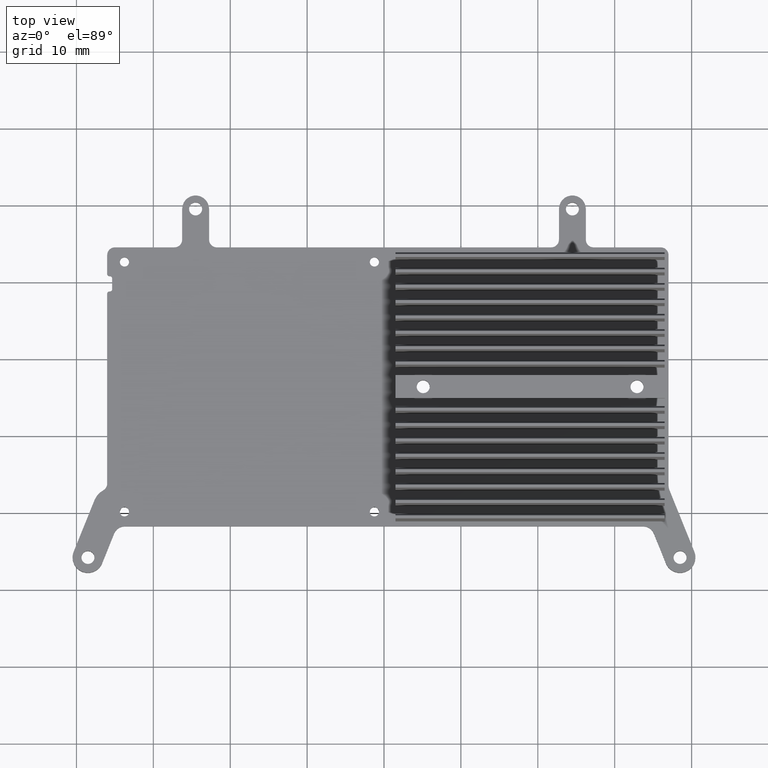
[diagram: clean part render]
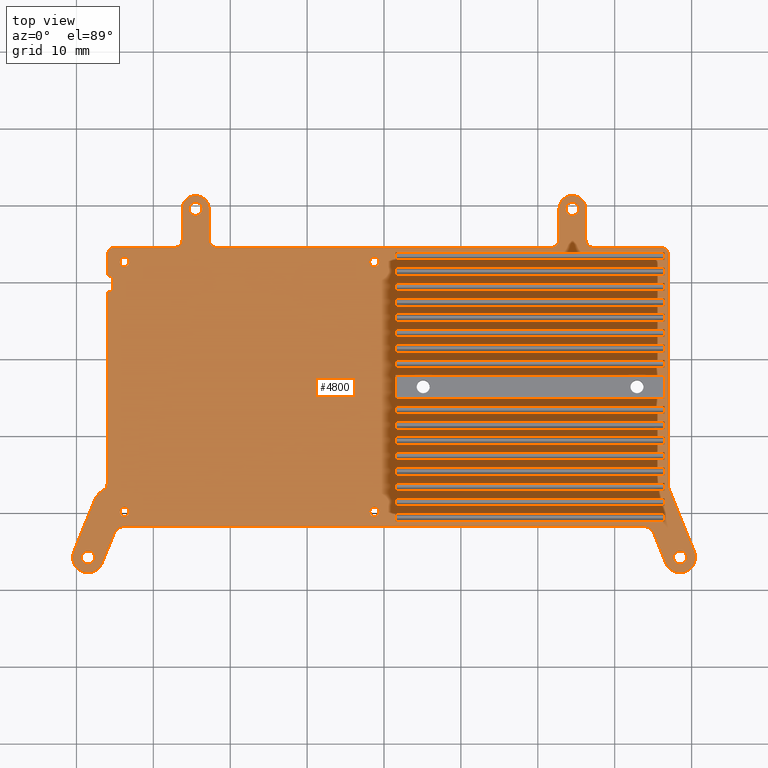
[diagram: same view with one face highlighted and labeled with its STEP entity id]
A machine part, top view. The second image highlights one B-rep face of the part: STEP entity #4800.
In plain terms, the highlighted planar face has unit normal (-0, 0, 1).
Its self-contained STEP definition (entity closure, byte-faithful):
#5 = ORIENTED_EDGE ( 'NONE', *, *, #4268, .T. ) ;
#6 = DIRECTION ( 'NONE',  ( 1.000000000000000000, 0.0000000000000000000, 0.0000000000000000000 ) ) ;
#14 = CARTESIAN_POINT ( 'NONE',  ( 36.49940000000000100, -0.1122800975400076200, -6.099999999999999600 ) ) ;
#19 = AXIS2_PLACEMENT_3D ( 'NONE', #4706, #1341, #3414 ) ;
#20 = DIRECTION ( 'NONE',  ( -1.000000000000000000, 0.0000000000000000000, 0.0000000000000000000 ) ) ;
#25 = EDGE_CURVE ( 'NONE', #5014, #2307, #4585, .T. ) ;
#26 = CARTESIAN_POINT ( 'NONE',  ( 51.58500000000000100, -6.112280097539998500, -6.099999999999999600 ) ) ;
#28 = ORIENTED_EDGE ( 'NONE', *, *, #4254, .T. ) ;
#46 = EDGE_CURVE ( 'NONE', #2111, #1652, #1079, .T. ) ;
#63 = DIRECTION ( 'NONE',  ( 1.000000000000000000, 0.0000000000000000000, 0.0000000000000000000 ) ) ;
#68 = VERTEX_POINT ( 'NONE', #4671 ) ;
#72 = CARTESIAN_POINT ( 'NONE',  ( -35.99940000000000100, 13.53570848732000100, -6.099999999999999600 ) ) ;
#85 = EDGE_CURVE ( 'NONE', #407, #3063, #267, .T. ) ;
#96 = ORIENTED_EDGE ( 'NONE', *, *, #5006, .T. ) ;
#98 = EDGE_CURVE ( 'NONE', #879, #3138, #335, .T. ) ;
#101 = DIRECTION ( 'NONE',  ( 1.000000000000000000, 0.0000000000000000000, 0.0000000000000000000 ) ) ;
#105 = EDGE_CURVE ( 'NONE', #953, #5404, #804, .T. ) ;
#110 = CARTESIAN_POINT ( 'NONE',  ( -27.24929999790000000, 15.53570848732000100, -6.099999999999999600 ) ) ;
#126 = CARTESIAN_POINT ( 'NONE',  ( 36.49940000000000100, -9.112280097539994000, -6.099999999999999600 ) ) ;
#129 = EDGE_CURVE ( 'NONE', #1042, #1892, #2532, .T. ) ;
#134 = CARTESIAN_POINT ( 'NONE',  ( 36.49940000000000100, 0.8877199024600008800, -6.099999999999999600 ) ) ;
#139 = DIRECTION ( 'NONE',  ( -1.000000000000000000, 0.0000000000000000000, 0.0000000000000000000 ) ) ;
#145 = EDGE_LOOP ( 'NONE', ( #2026, #1548, #3938, #3032 ) ) ;
#146 = ORIENTED_EDGE ( 'NONE', *, *, #851, .F. ) ;
#148 = EDGE_CURVE ( 'NONE', #4727, #3548, #4719, .T. ) ;
#149 = ORIENTED_EDGE ( 'NONE', *, *, #46, .T. ) ;
#158 = ORIENTED_EDGE ( 'NONE', *, *, #2972, .T. ) ;
#164 = EDGE_CURVE ( 'NONE', #2771, #1436, #4513, .T. ) ;
#169 = ORIENTED_EDGE ( 'NONE', *, *, #5033, .F. ) ;
#178 = FACE_BOUND ( 'NONE', #3728, .T. ) ;
#179 = CARTESIAN_POINT ( 'NONE',  ( 36.49940000000000100, 5.887719902459991800, -6.099999999999999600 ) ) ;
#181 = DIRECTION ( 'NONE',  ( -0.0000000000000000000, -1.000000000000000000, 0.0000000000000000000 ) ) ;
#183 = CIRCLE ( 'NONE', #829, 0.3000000000000016500 ) ;
#186 = CIRCLE ( 'NONE', #965, 1.000000000000000900 ) ;
#199 = EDGE_CURVE ( 'NONE', #5082, #486, #2477, .T. ) ;
#202 = VECTOR ( 'NONE', #3110, 1000.000000000000000 ) ;
#204 = CARTESIAN_POINT ( 'NONE',  ( -34.99940000000000100, 13.53570848732000100, -6.099999999999999600 ) ) ;
#207 = CARTESIAN_POINT ( 'NONE',  ( 36.49940000000000100, 29.85825307265000100, -6.099999999999999600 ) ) ;
#209 = EDGE_CURVE ( 'NONE', #2814, #2687, #5456, .T. ) ;
#212 = ORIENTED_EDGE ( 'NONE', *, *, #774, .F. ) ;
#227 = EDGE_CURVE ( 'NONE', #2365, #1393, #4250, .T. ) ;
#231 = AXIS2_PLACEMENT_3D ( 'NONE', #818, #2085, #1682 ) ;
#233 = CARTESIAN_POINT ( 'NONE',  ( 1.500599999999998200, -17.11228009753999000, -6.099999999999999600 ) ) ;
#240 = CARTESIAN_POINT ( 'NONE',  ( 51.58500000000000100, -19.11228009754000100, -6.099999999999999600 ) ) ;
#242 = CARTESIAN_POINT ( 'NONE',  ( 35.99940000000000100, 13.53570848732000100, -6.099999999999999600 ) ) ;
#245 = CARTESIAN_POINT ( 'NONE',  ( 51.58500000000000100, 8.887719902460000700, -6.099999999999999600 ) ) ;
#247 = CARTESIAN_POINT ( 'NONE',  ( 51.58500000000000100, 12.88771990246000100, -6.099999999999999600 ) ) ;
#255 = VECTOR ( 'NONE', #3635, 1000.000000000000000 ) ;
#259 = EDGE_CURVE ( 'NONE', #1101, #2677, #542, .T. ) ;
#262 = CARTESIAN_POINT ( 'NONE',  ( -33.14939999999999300, -19.86228009754000100, -6.099999999999999600 ) ) ;
#265 = CARTESIAN_POINT ( 'NONE',  ( -36.52040683251854600, -17.06572210977933000, -6.099999999999999600 ) ) ;
#267 = LINE ( 'NONE', #1711, #3195 ) ;
#271 = CIRCLE ( 'NONE', #4537, 0.5999999999999999800 ) ;
#273 = EDGE_LOOP ( 'NONE', ( #4320, #3394 ) ) ;
#277 = EDGE_CURVE ( 'NONE', #1153, #2442, #5181, .T. ) ;
#278 = VERTEX_POINT ( 'NONE', #1453 ) ;
#279 = EDGE_LOOP ( 'NONE', ( #2724, #5301 ) ) ;
#282 = DIRECTION ( 'NONE',  ( -0.0000000000000000000, 1.000000000000000000, 0.0000000000000000000 ) ) ;
#286 = VERTEX_POINT ( 'NONE', #2595 ) ;
#287 = EDGE_CURVE ( 'NONE', #1032, #4276, #2268, .T. ) ;
#293 = DIRECTION ( 'NONE',  ( -1.000000000000000000, 0.0000000000000000000, 0.0000000000000000000 ) ) ;
#307 = CARTESIAN_POINT ( 'NONE',  ( 36.49940000000000100, -1.112280097540000500, -6.099999999999999600 ) ) ;
#321 = CIRCLE ( 'NONE', #1435, 1.000000000000000900 ) ;
#335 = LINE ( 'NONE', #456, #5323 ) ;
#346 = CARTESIAN_POINT ( 'NONE',  ( 36.99940000000000100, 29.85825307265000100, -6.099999999999999600 ) ) ;
#349 = ORIENTED_EDGE ( 'NONE', *, *, #590, .T. ) ;
#353 = EDGE_CURVE ( 'NONE', #499, #4315, #1538, .T. ) ;
#362 = ORIENTED_EDGE ( 'NONE', *, *, #3028, .T. ) ;
#364 = VECTOR ( 'NONE', #447, 1000.000000000000000 ) ;
#368 = CARTESIAN_POINT ( 'NONE',  ( 36.64512865006570800, -26.53677403974174400, -6.099999999999999600 ) ) ;
#371 = EDGE_CURVE ( 'NONE', #2229, #3337, #5104, .T. ) ;
#372 = ORIENTED_EDGE ( 'NONE', *, *, #4968, .T. ) ;
#376 = ORIENTED_EDGE ( 'NONE', *, *, #4046, .T. ) ;
#383 = DIRECTION ( 'NONE',  ( 1.000000000000000000, 0.0000000000000000000, 0.0000000000000000000 ) ) ;
#390 = DIRECTION ( 'NONE',  ( 1.000000000000000000, 0.0000000000000000000, 0.0000000000000000000 ) ) ;
#391 = EDGE_CURVE ( 'NONE', #3739, #5004, #4845, .T. ) ;
#401 = VECTOR ( 'NONE', #4306, 1000.000000000000000 ) ;
#404 = LINE ( 'NONE', #1071, #5109 ) ;
#407 = VERTEX_POINT ( 'NONE', #4927 ) ;
#409 = CIRCLE ( 'NONE', #4640, 1.000000000000000900 ) ;
#416 = CARTESIAN_POINT ( 'NONE',  ( 1.500599999999998200, -5.112280097539998500, -6.099999999999999600 ) ) ;
#418 = CARTESIAN_POINT ( 'NONE',  ( 51.58500000000000100, -8.112280097539999300, -6.099999999999999600 ) ) ;
#425 = CARTESIAN_POINT ( 'NONE',  ( 36.49940000000000100, 9.887719902459993500, -6.099999999999999600 ) ) ;
#430 = CARTESIAN_POINT ( 'NONE',  ( 26.24929999790000000, 29.85825307265000100, -6.099999999999999600 ) ) ;
#439 = ORIENTED_EDGE ( 'NONE', *, *, #25, .F. ) ;
#441 = CARTESIAN_POINT ( 'NONE',  ( 36.49940000000000100, -21.76026868240000000, -6.099999999999999600 ) ) ;
#447 = DIRECTION ( 'NONE',  ( -0.0000000000000000000, -1.000000000000000000, 0.0000000000000000000 ) ) ;
#449 = EDGE_CURVE ( 'NONE', #499, #5004, #798, .T. ) ;
#450 = CARTESIAN_POINT ( 'NONE',  ( 1.500599999999999500, -1.112280097539999600, -6.099999999999999600 ) ) ;
#452 = LINE ( 'NONE', #4543, #4904 ) ;
#454 = CARTESIAN_POINT ( 'NONE',  ( 1.500599999999998200, -19.11228009753999400, -6.099999999999999600 ) ) ;
#456 = CARTESIAN_POINT ( 'NONE',  ( 22.74939999789999900, 29.85825307265000100, -6.099999999999999600 ) ) ;
#463 = FACE_BOUND ( 'NONE', #3964, .T. ) ;
#468 = EDGE_CURVE ( 'NONE', #4722, #775, #4184, .T. ) ;
#469 = ORIENTED_EDGE ( 'NONE', *, *, #780, .T. ) ;
#477 = CARTESIAN_POINT ( 'NONE',  ( -1.249400000000000100, -19.86228009754000100, -6.099999999999999600 ) ) ;
#486 = VERTEX_POINT ( 'NONE', #265 ) ;
#488 = CIRCLE ( 'NONE', #3220, 1.500000000000001300 ) ;
#495 = DIRECTION ( 'NONE',  ( 1.000000000000000000, 0.0000000000000000000, 0.0000000000000000000 ) ) ;
#499 = VERTEX_POINT ( 'NONE', #3668 ) ;
#503 = EDGE_CURVE ( 'NONE', #3343, #1076, #4981, .T. ) ;
#505 = DIRECTION ( 'NONE',  ( -0.0000000000000000000, 1.000000000000000000, 0.0000000000000000000 ) ) ;
#511 = DIRECTION ( 'NONE',  ( 1.000000000000000000, 0.0000000000000000000, 0.0000000000000000000 ) ) ;
#519 = CARTESIAN_POINT ( 'NONE',  ( -35.99940000000000100, 0.0000000000000000000, -6.099999999999999600 ) ) ;
#542 = LINE ( 'NONE', #1052, #2664 ) ;
#549 = DIRECTION ( 'NONE',  ( 1.000000000000000000, -0.0000000000000000000, 0.0000000000000000000 ) ) ;
#552 = CARTESIAN_POINT ( 'NONE',  ( -35.64940000000000000, 9.097719902459999700, -6.099999999999999600 ) ) ;
#553 = CARTESIAN_POINT ( 'NONE',  ( 1.500599999999999900, 14.53570848732000100, -6.099999999999999600 ) ) ;
#556 = EDGE_CURVE ( 'NONE', #2217, #2218, #4055, .T. ) ;
#557 = LINE ( 'NONE', #1234, #2219 ) ;
#560 = CARTESIAN_POINT ( 'NONE',  ( 1.500599999999997700, 29.85825307265000100, -6.099999999999999600 ) ) ;
#563 = LINE ( 'NONE', #4220, #3823 ) ;
#564 = CARTESIAN_POINT ( 'NONE',  ( 37.64945000000000900, -25.78757958323000200, -6.100000000000001400 ) ) ;
#569 = CIRCLE ( 'NONE', #231, 0.3000000000000016500 ) ;
#579 = CARTESIAN_POINT ( 'NONE',  ( -22.74939999789999600, 19.53570848732000100, -6.099999999999999600 ) ) ;
#586 = DIRECTION ( 'NONE',  ( 0.0000000000000000000, 0.0000000000000000000, -1.000000000000000000 ) ) ;
#590 = EDGE_CURVE ( 'NONE', #1231, #4961, #5035, .T. ) ;
#592 = VECTOR ( 'NONE', #2881, 1000.000000000000000 ) ;
#601 = EDGE_CURVE ( 'NONE', #2707, #3326, #3650, .T. ) ;
#607 = ORIENTED_EDGE ( 'NONE', *, *, #353, .T. ) ;
#606 = CARTESIAN_POINT ( 'NONE',  ( -26.24929999789999600, 29.85825307265000100, -6.099999999999999600 ) ) ;
#614 = ORIENTED_EDGE ( 'NONE', *, *, #3542, .T. ) ;
#631 = ORIENTED_EDGE ( 'NONE', *, *, #1606, .T. ) ;
#633 = EDGE_CURVE ( 'NONE', #1190, #1756, #5309, .T. ) ;
#635 = DIRECTION ( 'NONE',  ( -0.0000000000000000000, -0.0000000000000000000, -1.000000000000000000 ) ) ;
#658 = CARTESIAN_POINT ( 'NONE',  ( 51.58500000000000100, -11.11228009754000300, -6.099999999999999600 ) ) ;
#659 = LINE ( 'NONE', #240, #1465 ) ;
#663 = LINE ( 'NONE', #4408, #2328 ) ;
#669 = VERTEX_POINT ( 'NONE', #1617 ) ;
#672 = VERTEX_POINT ( 'NONE', #1650 ) ;
#675 = DIRECTION ( 'NONE',  ( -1.000000000000000000, -0.0000000000000000000, -0.0000000000000000000 ) ) ;
#679 = CARTESIAN_POINT ( 'NONE',  ( -1.849400000000000200, -19.86228009754000100, -6.099999999999999600 ) ) ;
#687 = EDGE_LOOP ( 'NONE', ( #5482, #2801, #957, #4880 ) ) ;
#722 = DIRECTION ( 'NONE',  ( 1.000000000000000000, 0.0000000000000000000, 0.0000000000000000000 ) ) ;
#723 = DIRECTION ( 'NONE',  ( -0.0000000000000000000, -0.0000000000000000000, -1.000000000000000000 ) ) ;
#725 = CARTESIAN_POINT ( 'NONE',  ( -22.74939999789999900, 15.53570848732000100, -6.099999999999999600 ) ) ;
#727 = LINE ( 'NONE', #519, #5243 ) ;
#728 = CARTESIAN_POINT ( 'NONE',  ( 36.49940000000000100, 29.85825307265000100, -6.099999999999999600 ) ) ;
#734 = FACE_BOUND ( 'NONE', #894, .T. ) ;
#737 = VECTOR ( 'NONE', #1781, 1000.000000000000000 ) ;
#751 = AXIS2_PLACEMENT_3D ( 'NONE', #4236, #2088, #4201 ) ;
#759 = EDGE_CURVE ( 'NONE', #4213, #2479, #863, .T. ) ;
#767 = CARTESIAN_POINT ( 'NONE',  ( 36.49940000000000100, -14.11228009753999600, -6.099999999999999600 ) ) ;
#774 = EDGE_CURVE ( 'NONE', #1032, #486, #2128, .T. ) ;
#775 = VERTEX_POINT ( 'NONE', #5095 ) ;
#778 = CARTESIAN_POINT ( 'NONE',  ( -33.70353244259000300, -23.26026868240000300, -6.099999999999999600 ) ) ;
#780 = EDGE_CURVE ( 'NONE', #3543, #4219, #2526, .T. ) ;
#781 = CARTESIAN_POINT ( 'NONE',  ( 1.500599999999997700, 29.85825307265000100, -6.099999999999999600 ) ) ;
#785 = DIRECTION ( 'NONE',  ( -0.0000000000000000000, -1.000000000000000000, 0.0000000000000000000 ) ) ;
#792 = VECTOR ( 'NONE', #4128, 1000.000000000000000 ) ;
#793 = CARTESIAN_POINT ( 'NONE',  ( 51.58500000000000100, 4.887719902459998000, -6.099999999999999600 ) ) ;
#798 = LINE ( 'NONE', #1129, #1860 ) ;
#804 = LINE ( 'NONE', #4608, #2601 ) ;
#818 = CARTESIAN_POINT ( 'NONE',  ( -35.69939999999999700, 11.09771990246000000, -6.099999999999999600 ) ) ;
#822 = EDGE_LOOP ( 'NONE', ( #2482, #5385, #4763, #1055 ) ) ;
#829 = AXIS2_PLACEMENT_3D ( 'NONE', #4298, #935, #1777 ) ;
#834 = LINE ( 'NONE', #1889, #1833 ) ;
#847 = DIRECTION ( 'NONE',  ( -0.0000000000000000000, 1.000000000000000000, 0.0000000000000000000 ) ) ;
#851 = EDGE_CURVE ( 'NONE', #4447, #4146, #183, .T. ) ;
#855 = VECTOR ( 'NONE', #785, 1000.000000000000000 ) ;
#863 = CIRCLE ( 'NONE', #3318, 0.6000000000000033100 ) ;
#879 = VERTEX_POINT ( 'NONE', #1406 ) ;
#886 = EDGE_CURVE ( 'NONE', #5461, #4687, #3986, .T. ) ;
#889 = ORIENTED_EDGE ( 'NONE', *, *, #911, .T. ) ;
#894 = EDGE_LOOP ( 'NONE', ( #4848, #5425, #169, #349 ) ) ;
#895 = AXIS2_PLACEMENT_3D ( 'NONE', #3392, #4626, #5085 ) ;
#896 = VECTOR ( 'NONE', #2829, 1000.000000000000000 ) ;
#902 = DIRECTION ( 'NONE',  ( -0.0000000000000000000, -0.0000000000000000000, -1.000000000000000000 ) ) ;
#905 = CARTESIAN_POINT ( 'NONE',  ( 51.58500000000000100, 10.79771990246000300, -6.099999999999999600 ) ) ;
#909 = ORIENTED_EDGE ( 'NONE', *, *, #85, .F. ) ;
#911 = EDGE_CURVE ( 'NONE', #68, #2642, #2056, .T. ) ;
#920 = FACE_BOUND ( 'NONE', #145, .T. ) ;
#923 = EDGE_CURVE ( 'NONE', #1652, #2111, #3387, .T. ) ;
#935 = DIRECTION ( 'NONE',  ( 0.0000000000000000000, 0.0000000000000000000, -1.000000000000000000 ) ) ;
#939 = VECTOR ( 'NONE', #3359, 1000.000000000000000 ) ;
#944 = CARTESIAN_POINT ( 'NONE',  ( 24.49934999790000100, 19.53570848732000100, -6.100000000000001400 ) ) ;
#947 = CARTESIAN_POINT ( 'NONE',  ( 27.24929999790000000, 15.53570848732000100, -6.099999999999999600 ) ) ;
#953 = VERTEX_POINT ( 'NONE', #4862 ) ;
#957 = ORIENTED_EDGE ( 'NONE', *, *, #3137, .F. ) ;
#962 = CARTESIAN_POINT ( 'NONE',  ( 51.58500000000000100, -20.11228009753999800, -6.099999999999999600 ) ) ;
#964 = CARTESIAN_POINT ( 'NONE',  ( 51.58500000000000100, -10.11228009754000100, -6.099999999999999600 ) ) ;
#965 = AXIS2_PLACEMENT_3D ( 'NONE', #110, #1404, #3106 ) ;
#966 = ORIENTED_EDGE ( 'NONE', *, *, #2845, .T. ) ;
#977 = ORIENTED_EDGE ( 'NONE', *, *, #3488, .T. ) ;
#980 = CARTESIAN_POINT ( 'NONE',  ( -34.34940000000000300, 12.63771990246000100, -6.099999999999999600 ) ) ;
#996 = VECTOR ( 'NONE', #2354, 1000.000000000000000 ) ;
#1004 = VERTEX_POINT ( 'NONE', #3978 ) ;
#1005 = LINE ( 'NONE', #1148, #3931 ) ;
#1007 = ORIENTED_EDGE ( 'NONE', *, *, #3505, .T. ) ;
#1018 = EDGE_CURVE ( 'NONE', #5014, #4034, #1128, .T. ) ;
#1019 = LINE ( 'NONE', #560, #3338 ) ;
#1031 = CARTESIAN_POINT ( 'NONE',  ( 38.49945000000000300, -25.78757958323000200, -6.100000000000001400 ) ) ;
#1032 = VERTEX_POINT ( 'NONE', #2734 ) ;
#1033 = VERTEX_POINT ( 'NONE', #2713 ) ;
#1042 = VERTEX_POINT ( 'NONE', #4502 ) ;
#1044 = VERTEX_POINT ( 'NONE', #1586 ) ;
#1052 = CARTESIAN_POINT ( 'NONE',  ( 36.49940000000000100, -21.76026868240000000, -6.099999999999999600 ) ) ;
#1055 = ORIENTED_EDGE ( 'NONE', *, *, #2064, .T. ) ;
#1058 = FACE_OUTER_BOUND ( 'NONE', #1587, .T. ) ;
#1061 = CARTESIAN_POINT ( 'NONE',  ( 21.74939999790000300, 15.53570848732000100, -6.099999999999999600 ) ) ;
#1063 = CARTESIAN_POINT ( 'NONE',  ( 26.24929999790000000, 15.53570848732000100, -6.099999999999999600 ) ) ;
#1071 = CARTESIAN_POINT ( 'NONE',  ( 51.58500000000000100, -18.11228009754000100, -6.099999999999999600 ) ) ;
#1074 = CARTESIAN_POINT ( 'NONE',  ( 1.500599999999997700, 29.85825307265000100, -6.099999999999999600 ) ) ;
#1076 = VERTEX_POINT ( 'NONE', #3697 ) ;
#1079 = CIRCLE ( 'NONE', #895, 0.8499999999999965400 ) ;
#1094 = EDGE_CURVE ( 'NONE', #1793, #2681, #452, .T. ) ;
#1100 = CARTESIAN_POINT ( 'NONE',  ( -35.69939999999999700, 10.79771990246000100, -6.099999999999999600 ) ) ;
#1101 = VERTEX_POINT ( 'NONE', #2031 ) ;
#1105 = EDGE_CURVE ( 'NONE', #4196, #4738, #659, .T. ) ;
#1108 = ORIENTED_EDGE ( 'NONE', *, *, #227, .T. ) ;
#1112 = ORIENTED_EDGE ( 'NONE', *, *, #4161, .T. ) ;
#1113 = EDGE_CURVE ( 'NONE', #5087, #4136, #1593, .T. ) ;
#1122 = DIRECTION ( 'NONE',  ( -0.0000000000000000000, 1.000000000000000000, 0.0000000000000000000 ) ) ;
#1128 = LINE ( 'NONE', #2327, #3382 ) ;
#1129 = CARTESIAN_POINT ( 'NONE',  ( 36.49940000000000100, -21.76026868240000000, -6.099999999999999600 ) ) ;
#1139 = VECTOR ( 'NONE', #6, 1000.000000000000000 ) ;
#1145 = CIRCLE ( 'NONE', #2916, 1.749950000000000100 ) ;
#1148 = CARTESIAN_POINT ( 'NONE',  ( 51.58500000000000100, 5.887719902459998900, -6.099999999999999600 ) ) ;
#1153 = VERTEX_POINT ( 'NONE', #1605 ) ;
#1154 = CARTESIAN_POINT ( 'NONE',  ( 1.500599999999999500, 5.887719902459992700, -6.099999999999999600 ) ) ;
#1156 = CARTESIAN_POINT ( 'NONE',  ( 36.99940000000000100, -16.44445423331000100, -6.099999999999999600 ) ) ;
#1159 = CARTESIAN_POINT ( 'NONE',  ( 36.49940000000000100, -21.76026868240000000, -6.099999999999999600 ) ) ;
#1162 = CARTESIAN_POINT ( 'NONE',  ( 36.49940000000000100, 2.887719902459999300, -6.099999999999999600 ) ) ;
#1167 = DIRECTION ( 'NONE',  ( -0.0000000000000000000, -0.0000000000000000000, -1.000000000000000000 ) ) ;
#1170 = CARTESIAN_POINT ( 'NONE',  ( -33.14939999999999300, 12.63771990246000100, -6.099999999999999600 ) ) ;
#1173 = EDGE_CURVE ( 'NONE', #4369, #2568, #5234, .T. ) ;
#1184 = EDGE_LOOP ( 'NONE', ( #1962, #4549, #2146, #3289 ) ) ;
#1190 = VERTEX_POINT ( 'NONE', #4713 ) ;
#1194 = DIRECTION ( 'NONE',  ( 0.0000000000000000000, 0.0000000000000000000, -1.000000000000000000 ) ) ;
#1196 = FACE_BOUND ( 'NONE', #687, .T. ) ;
#1200 = EDGE_CURVE ( 'NONE', #2300, #2930, #5092, .T. ) ;
#1206 = DIRECTION ( 'NONE',  ( 1.000000000000000000, 0.0000000000000000000, 0.0000000000000000000 ) ) ;
#1210 = EDGE_CURVE ( 'NONE', #4642, #1624, #4701, .T. ) ;
#1211 = VECTOR ( 'NONE', #181, 1000.000000000000000 ) ;
#1217 = LINE ( 'NONE', #2224, #2412 ) ;
#1231 = VERTEX_POINT ( 'NONE', #1162 ) ;
#1234 = CARTESIAN_POINT ( 'NONE',  ( 36.49940000000000100, 29.85825307265000100, -6.099999999999999600 ) ) ;
#1235 = EDGE_CURVE ( 'NONE', #4642, #4961, #3573, .T. ) ;
#1236 = VERTEX_POINT ( 'NONE', #2084 ) ;
#1251 = CARTESIAN_POINT ( 'NONE',  ( 35.09430822444480200, -22.69835879228734000, -6.099999999999999600 ) ) ;
#1261 = CARTESIAN_POINT ( 'NONE',  ( 38.49945000000000300, -25.78757958323000200, -6.099999999999999600 ) ) ;
#1263 = CARTESIAN_POINT ( 'NONE',  ( -35.34940000000000300, 10.49771990246000200, -6.099999999999999600 ) ) ;
#1266 = DIRECTION ( 'NONE',  ( 0.0000000000000000000, 1.000000000000000000, -0.0000000000000000000 ) ) ;
#1270 = VECTOR ( 'NONE', #2207, 1000.000000000000000 ) ;
#1277 = VECTOR ( 'NONE', #3001, 1000.000000000000000 ) ;
#1291 = DIRECTION ( 'NONE',  ( -0.0000000000000000000, -1.000000000000000000, 0.0000000000000000000 ) ) ;
#1294 = VERTEX_POINT ( 'NONE', #3060 ) ;
#1296 = CARTESIAN_POINT ( 'NONE',  ( -35.32292391381000100, -19.26026868240000300, -6.099999999999999600 ) ) ;
#1300 = DIRECTION ( 'NONE',  ( -0.0000000000000000000, -0.0000000000000000000, -1.000000000000000000 ) ) ;
#1311 = CARTESIAN_POINT ( 'NONE',  ( -33.70353244259000300, -21.76026868240000000, -6.099999999999999600 ) ) ;
#1314 = AXIS2_PLACEMENT_3D ( 'NONE', #552, #3557, #2276 ) ;
#1319 = EDGE_CURVE ( 'NONE', #3739, #4315, #2505, .T. ) ;
#1320 = ORIENTED_EDGE ( 'NONE', *, *, #1113, .T. ) ;
#1327 = CIRCLE ( 'NONE', #4127, 0.5999999999999999800 ) ;
#1336 = CARTESIAN_POINT ( 'NONE',  ( -36.99940000000000100, -16.18790348073000000, -6.099999999999999600 ) ) ;
#1341 = DIRECTION ( 'NONE',  ( 0.0000000000000000000, 0.0000000000000000000, -1.000000000000000000 ) ) ;
#1347 = LINE ( 'NONE', #5223, #202 ) ;
#1351 = VERTEX_POINT ( 'NONE', #3507 ) ;
#1359 = DIRECTION ( 'NONE',  ( 1.000000000000000000, 0.0000000000000000000, 0.0000000000000000000 ) ) ;
#1365 = VECTOR ( 'NONE', #4281, 1000.000000000000000 ) ;
#1372 = ORIENTED_EDGE ( 'NONE', *, *, #2303, .T. ) ;
#1375 = LINE ( 'NONE', #247, #4477 ) ;
#1378 = CARTESIAN_POINT ( 'NONE',  ( 51.58500000000000100, -14.11228009753999800, -6.099999999999999600 ) ) ;
#1393 = VERTEX_POINT ( 'NONE', #4450 ) ;
#1394 = CARTESIAN_POINT ( 'NONE',  ( 51.58500000000000100, -21.11228009753999800, -6.099999999999999600 ) ) ;
#1398 = VECTOR ( 'NONE', #5373, 1000.000000000000000 ) ;
#1401 = LINE ( 'NONE', #1518, #2469 ) ;
#1404 = DIRECTION ( 'NONE',  ( 0.0000000000000000000, 0.0000000000000000000, -1.000000000000000000 ) ) ;
#1406 = CARTESIAN_POINT ( 'NONE',  ( 22.74939999789999900, 19.53570848732000100, -6.099999999999999600 ) ) ;
#1422 = EDGE_CURVE ( 'NONE', #4144, #3033, #834, .T. ) ;
#1433 = CARTESIAN_POINT ( 'NONE',  ( -35.34940000000000300, 9.097719902459999700, -6.099999999999999600 ) ) ;
#1435 = AXIS2_PLACEMENT_3D ( 'NONE', #242, #3281, #1591 ) ;
#1436 = VERTEX_POINT ( 'NONE', #3989 ) ;
#1444 = VECTOR ( 'NONE', #3242, 1000.000000000000000 ) ;
#1452 = CARTESIAN_POINT ( 'NONE',  ( 36.49940000000000100, -17.11228009753999000, -6.099999999999999600 ) ) ;
#1453 = CARTESIAN_POINT ( 'NONE',  ( 1.500599999999999500, -0.1122800975400063300, -6.099999999999999600 ) ) ;
#1455 = ORIENTED_EDGE ( 'NONE', *, *, #4759, .T. ) ;
#1461 = DIRECTION ( 'NONE',  ( -0.0000000000000000000, 1.000000000000000000, 0.0000000000000000000 ) ) ;
#1464 = EDGE_CURVE ( 'NONE', #1101, #1076, #1375, .T. ) ;
#1465 = VECTOR ( 'NONE', #1953, 1000.000000000000000 ) ;
#1466 = LINE ( 'NONE', #5162, #4835 ) ;
#1483 = CARTESIAN_POINT ( 'NONE',  ( -24.50055000209999900, 19.53570848729999900, -6.100000000000001400 ) ) ;
#1492 = DIRECTION ( 'NONE',  ( 1.000000000000000000, 0.0000000000000000000, 0.0000000000000000000 ) ) ;
#1505 = CARTESIAN_POINT ( 'NONE',  ( 36.49940000000000100, -11.11228009753999400, -6.099999999999999600 ) ) ;
#1508 = CIRCLE ( 'NONE', #3506, 1.999950000000000300 ) ;
#1516 = DIRECTION ( 'NONE',  ( 1.000000000000000000, 0.0000000000000000000, 0.0000000000000000000 ) ) ;
#1518 = CARTESIAN_POINT ( 'NONE',  ( -35.34939999999999600, 29.85825307265000100, -6.099999999999999600 ) ) ;
#1520 = DIRECTION ( 'NONE',  ( 1.000000000000000000, 0.0000000000000000000, 0.0000000000000000000 ) ) ;
#1538 = LINE ( 'NONE', #3968, #3324 ) ;
#1543 = CARTESIAN_POINT ( 'NONE',  ( 51.58500000000000100, 11.88771990246000100, -6.099999999999999600 ) ) ;
#1548 = ORIENTED_EDGE ( 'NONE', *, *, #3629, .T. ) ;
#1559 = CARTESIAN_POINT ( 'NONE',  ( 51.58500000000000100, -21.76026868240000000, -6.099999999999999600 ) ) ;
#1562 = EDGE_CURVE ( 'NONE', #3033, #953, #3624, .T. ) ;
#1563 = ORIENTED_EDGE ( 'NONE', *, *, #5265, .F. ) ;
#1574 = CARTESIAN_POINT ( 'NONE',  ( 36.49940000000000100, 29.85825307265000100, -6.099999999999999600 ) ) ;
#1580 = VERTEX_POINT ( 'NONE', #679 ) ;
#1583 = VERTEX_POINT ( 'NONE', #179 ) ;
#1585 = DIRECTION ( 'NONE',  ( 1.000000000000000000, -0.0000000000000000000, 0.0000000000000000000 ) ) ;
#1586 = CARTESIAN_POINT ( 'NONE',  ( -23.65055000210000100, 19.53570848729999900, -6.100000000000001400 ) ) ;
#1587 = EDGE_LOOP ( 'NONE', ( #4751, #2113, #977, #2790, #5320, #1007, #3005, #146, #5349, #3512, #212, #5052, #5024, #4341, #4982, #1700, #889, #1923, #5304, #439, #3369, #966, #2561, #5479, #2377, #158, #5197, #1827, #3245, #3681, #2885, #2452, #2166, #2284, #1112, #5312, #3821, #4066 ) ) ;
#1591 = DIRECTION ( 'NONE',  ( -1.000000000000000000, 0.0000000000000000000, 0.0000000000000000000 ) ) ;
#1593 = LINE ( 'NONE', #2791, #5505 ) ;
#1594 = CARTESIAN_POINT ( 'NONE',  ( 51.58500000000000100, 1.887719902459998700, -6.099999999999999600 ) ) ;
#1596 = EDGE_CURVE ( 'NONE', #775, #4722, #2696, .T. ) ;
#1602 = LINE ( 'NONE', #4079, #3721 ) ;
#1603 = VECTOR ( 'NONE', #5284, 1000.000000000000000 ) ;
#1605 = CARTESIAN_POINT ( 'NONE',  ( -35.64940000000000000, 10.79771990246000100, -6.099999999999999600 ) ) ;
#1606 = EDGE_CURVE ( 'NONE', #3332, #5087, #2566, .T. ) ;
#1612 = DIRECTION ( 'NONE',  ( 1.000000000000000000, 0.0000000000000000000, 0.0000000000000000000 ) ) ;
#1617 = CARTESIAN_POINT ( 'NONE',  ( 1.500599999999999500, 0.8877199024600008800, -6.099999999999999600 ) ) ;
#1624 = VERTEX_POINT ( 'NONE', #3638 ) ;
#1633 = EDGE_LOOP ( 'NONE', ( #1372, #3886 ) ) ;
#1643 = CARTESIAN_POINT ( 'NONE',  ( 36.49940000000000100, -5.112280097539998500, -6.099999999999999600 ) ) ;
#1650 = CARTESIAN_POINT ( 'NONE',  ( 36.49940000000000100, -18.11228009753999800, -6.099999999999999600 ) ) ;
#1652 = VERTEX_POINT ( 'NONE', #4424 ) ;
#1654 = DIRECTION ( 'NONE',  ( 1.000000000000000000, -1.908243529662729100E-014, 0.0000000000000000000 ) ) ;
#1661 = CARTESIAN_POINT ( 'NONE',  ( 1.500599999999997700, 29.85825307265000100, -6.099999999999999600 ) ) ;
#1665 = VECTOR ( 'NONE', #1122, 1000.000000000000000 ) ;
#1667 = VECTOR ( 'NONE', #5046, 1000.000000000000000 ) ;
#1668 = CARTESIAN_POINT ( 'NONE',  ( 1.500599999999999500, 13.88771990245999200, -6.099999999999999600 ) ) ;
#1677 = VERTEX_POINT ( 'NONE', #3296 ) ;
#1679 = DIRECTION ( 'NONE',  ( -0.0000000000000000000, -1.000000000000000000, 0.0000000000000000000 ) ) ;
#1682 = DIRECTION ( 'NONE',  ( 1.000000000000000000, 0.0000000000000000000, 0.0000000000000000000 ) ) ;
#1694 = ORIENTED_EDGE ( 'NONE', *, *, #3644, .T. ) ;
#1696 = VECTOR ( 'NONE', #2108, 1000.000000000000000 ) ;
#1700 = ORIENTED_EDGE ( 'NONE', *, *, #5333, .T. ) ;
#1702 = DIRECTION ( 'NONE',  ( -0.0000000000000000000, -0.0000000000000000000, -1.000000000000000000 ) ) ;
#1711 = CARTESIAN_POINT ( 'NONE',  ( 1.500599999999999900, 14.53570848732000100, -6.099999999999999600 ) ) ;
#1729 = CARTESIAN_POINT ( 'NONE',  ( 51.58500000000000100, 9.887719902460002400, -6.099999999999999600 ) ) ;
#1745 = VECTOR ( 'NONE', #3879, 1000.000000000000000 ) ;
#1751 = VERTEX_POINT ( 'NONE', #5429 ) ;
#1756 = VERTEX_POINT ( 'NONE', #3756 ) ;
#1763 = DIRECTION ( 'NONE',  ( -0.0000000000000000000, -0.0000000000000000000, -1.000000000000000000 ) ) ;
#1777 = DIRECTION ( 'NONE',  ( -1.000000000000000000, 0.0000000000000000000, 0.0000000000000000000 ) ) ;
#1780 = DIRECTION ( 'NONE',  ( -0.0000000000000000000, -1.000000000000000000, 0.0000000000000000000 ) ) ;
#1781 = DIRECTION ( 'NONE',  ( -0.0000000000000000000, -1.000000000000000000, 0.0000000000000000000 ) ) ;
#1792 = VECTOR ( 'NONE', #2761, 1000.000000000000000 ) ;
#1793 = VERTEX_POINT ( 'NONE', #3365 ) ;
#1795 = LINE ( 'NONE', #4677, #4577 ) ;
#1797 = DIRECTION ( 'NONE',  ( 1.000000000000000000, 0.0000000000000000000, 0.0000000000000000000 ) ) ;
#1800 = DIRECTION ( 'NONE',  ( -0.0000000000000000000, -1.000000000000000000, 0.0000000000000000000 ) ) ;
#1802 = CIRCLE ( 'NONE', #2984, 1.000000000000000900 ) ;
#1815 = EDGE_CURVE ( 'NONE', #3165, #3078, #569, .T. ) ;
#1823 = EDGE_CURVE ( 'NONE', #5404, #4144, #2032, .T. ) ;
#1827 = ORIENTED_EDGE ( 'NONE', *, *, #3577, .T. ) ;
#1832 = DIRECTION ( 'NONE',  ( 1.000000000000000000, 0.0000000000000000000, 0.0000000000000000000 ) ) ;
#1833 = VECTOR ( 'NONE', #5286, 1000.000000000000000 ) ;
#1848 = CIRCLE ( 'NONE', #751, 1.999950000000000300 ) ;
#1857 = VECTOR ( 'NONE', #847, 1000.000000000000000 ) ;
#1860 = VECTOR ( 'NONE', #4962, 1000.000000000000000 ) ;
#1872 = EDGE_CURVE ( 'NONE', #5277, #4276, #1508, .T. ) ;
#1874 = ORIENTED_EDGE ( 'NONE', *, *, #2232, .T. ) ;
#1884 = DIRECTION ( 'NONE',  ( -1.000000000000000000, 0.0000000000000000000, 0.0000000000000000000 ) ) ;
#1889 = CARTESIAN_POINT ( 'NONE',  ( 51.58500000000000100, -17.11228009754000100, -6.099999999999999600 ) ) ;
#1892 = VERTEX_POINT ( 'NONE', #5498 ) ;
#1897 = VERTEX_POINT ( 'NONE', #14 ) ;
#1898 = CARTESIAN_POINT ( 'NONE',  ( -33.74940000000000100, -19.86228009754000100, -6.099999999999999600 ) ) ;
#1909 = DIRECTION ( 'NONE',  ( 0.0000000000000000000, 1.000000000000000000, -0.0000000000000000000 ) ) ;
#1913 = DIRECTION ( 'NONE',  ( 1.000000000000000000, 0.0000000000000000000, 0.0000000000000000000 ) ) ;
#1919 = DIRECTION ( 'NONE',  ( 1.000000000000000000, 0.0000000000000000000, 0.0000000000000000000 ) ) ;
#1923 = ORIENTED_EDGE ( 'NONE', *, *, #3653, .T. ) ;
#1934 = CARTESIAN_POINT ( 'NONE',  ( 35.09430822445000300, -22.69835879230000200, -6.099999999999999600 ) ) ;
#1935 = DIRECTION ( 'NONE',  ( -0.0000000000000000000, -1.000000000000000000, 0.0000000000000000000 ) ) ;
#1941 = DIRECTION ( 'NONE',  ( -1.000000000000000000, -0.0000000000000000000, -0.0000000000000000000 ) ) ;
#1949 = CARTESIAN_POINT ( 'NONE',  ( 36.49940000000000100, -21.76026868240000000, -6.099999999999999600 ) ) ;
#1953 = DIRECTION ( 'NONE',  ( -1.000000000000000000, -0.0000000000000000000, -0.0000000000000000000 ) ) ;
#1962 = ORIENTED_EDGE ( 'NONE', *, *, #371, .T. ) ;
#1968 = AXIS2_PLACEMENT_3D ( 'NONE', #1031, #3162, #1520 ) ;
#1980 = DIRECTION ( 'NONE',  ( -1.000000000000000000, -0.0000000000000000000, -0.0000000000000000000 ) ) ;
#1985 = FACE_BOUND ( 'NONE', #2044, .T. ) ;
#1987 = VECTOR ( 'NONE', #505, 1000.000000000000000 ) ;
#1990 = LINE ( 'NONE', #430, #2127 ) ;
#1995 = CARTESIAN_POINT ( 'NONE',  ( 36.49940000000000100, -16.11228009754000100, -6.099999999999999600 ) ) ;
#1996 = CARTESIAN_POINT ( 'NONE',  ( 36.49940000000000100, 29.85825307265000100, -6.099999999999999600 ) ) ;
#1999 = CARTESIAN_POINT ( 'NONE',  ( 1.500599999999999900, 14.53570848732000100, -6.099999999999999600 ) ) ;
#2000 = VECTOR ( 'NONE', #3333, 1000.000000000000000 ) ;
#2002 = CARTESIAN_POINT ( 'NONE',  ( -36.64512865005215000, -26.53677403971518700, -6.099999999999999600 ) ) ;
#2011 = CIRCLE ( 'NONE', #19, 1.000000000000000900 ) ;
#2013 = EDGE_CURVE ( 'NONE', #278, #3411, #2896, .T. ) ;
#2026 = ORIENTED_EDGE ( 'NONE', *, *, #4492, .T. ) ;
#2031 = CARTESIAN_POINT ( 'NONE',  ( 36.49940000000000100, 12.88771990246000100, -6.099999999999999600 ) ) ;
#2032 = LINE ( 'NONE', #3774, #364 ) ;
#2044 = EDGE_LOOP ( 'NONE', ( #3610, #614, #4337, #4699 ) ) ;
#2052 = FACE_BOUND ( 'NONE', #279, .T. ) ;
#2056 = CIRCLE ( 'NONE', #4622, 1.500000000000001300 ) ;
#2059 = LINE ( 'NONE', #3203, #3787 ) ;
#2064 = EDGE_CURVE ( 'NONE', #3343, #2677, #2291, .T. ) ;
#2066 = VECTOR ( 'NONE', #4344, 1000.000000000000000 ) ;
#2076 = ORIENTED_EDGE ( 'NONE', *, *, #3947, .T. ) ;
#2084 = CARTESIAN_POINT ( 'NONE',  ( 1.500599999999998200, -15.11228009753999000, -6.099999999999999600 ) ) ;
#2085 = DIRECTION ( 'NONE',  ( 0.0000000000000000000, 0.0000000000000000000, 1.000000000000000000 ) ) ;
#2088 = DIRECTION ( 'NONE',  ( -0.0000000000000000000, -0.0000000000000000000, -1.000000000000000000 ) ) ;
#2091 = CARTESIAN_POINT ( 'NONE',  ( 51.58500000000000100, 2.887719902459999300, -6.099999999999999600 ) ) ;
#2095 = AXIS2_PLACEMENT_3D ( 'NONE', #4044, #2766, #1516 ) ;
#2101 = CARTESIAN_POINT ( 'NONE',  ( -34.34940000000000300, -19.86228009754000100, -6.099999999999999600 ) ) ;
#2108 = DIRECTION ( 'NONE',  ( 0.0000000000000000000, 1.000000000000000000, -0.0000000000000000000 ) ) ;
#2109 = CARTESIAN_POINT ( 'NONE',  ( -34.99940000000000100, 14.53570848732000100, -6.099999999999999600 ) ) ;
#2111 = VERTEX_POINT ( 'NONE', #564 ) ;
#2113 = ORIENTED_EDGE ( 'NONE', *, *, #1815, .T. ) ;
#2116 = LINE ( 'NONE', #5012, #3912 ) ;
#2117 = CARTESIAN_POINT ( 'NONE',  ( -35.99940000000000100, 0.0000000000000000000, -6.099999999999999600 ) ) ;
#2125 = LINE ( 'NONE', #1074, #996 ) ;
#2127 = VECTOR ( 'NONE', #3419, 1000.000000000000000 ) ;
#2128 = CIRCLE ( 'NONE', #3212, 2.500000000000002200 ) ;
#2135 = DIRECTION ( 'NONE',  ( 1.000000000000000000, 0.0000000000000000000, 0.0000000000000000000 ) ) ;
#2146 = ORIENTED_EDGE ( 'NONE', *, *, #4381, .T. ) ;
#2147 = ORIENTED_EDGE ( 'NONE', *, *, #759, .T. ) ;
#2148 = VECTOR ( 'NONE', #1266, 1000.000000000000000 ) ;
#2154 = VECTOR ( 'NONE', #4243, 1000.000000000000000 ) ;
#2156 = DIRECTION ( 'NONE',  ( 0.0000000000000000000, 0.0000000000000000000, -1.000000000000000000 ) ) ;
#2166 = ORIENTED_EDGE ( 'NONE', *, *, #1200, .T. ) ;
#2170 = EDGE_LOOP ( 'NONE', ( #4013, #2778, #5053, #376 ) ) ;
#2183 = DIRECTION ( 'NONE',  ( 0.0000000000000000000, 0.0000000000000000000, -1.000000000000000000 ) ) ;
#2188 = FACE_BOUND ( 'NONE', #1633, .T. ) ;
#2198 = VECTOR ( 'NONE', #4619, 1000.000000000000000 ) ;
#2200 = VERTEX_POINT ( 'NONE', #3598 ) ;
#2206 = EDGE_CURVE ( 'NONE', #3138, #3652, #2558, .T. ) ;
#2207 = DIRECTION ( 'NONE',  ( 1.000000000000000000, 0.0000000000000000000, 0.0000000000000000000 ) ) ;
#2214 = VECTOR ( 'NONE', #4514, 1000.000000000000000 ) ;
#2217 = VERTEX_POINT ( 'NONE', #2846 ) ;
#2218 = VERTEX_POINT ( 'NONE', #3211 ) ;
#2219 = VECTOR ( 'NONE', #1679, 1000.000000000000000 ) ;
#2224 = CARTESIAN_POINT ( 'NONE',  ( 1.500599999999999900, 14.53570848732000100, -6.099999999999999600 ) ) ;
#2229 = VERTEX_POINT ( 'NONE', #4090 ) ;
#2232 = EDGE_CURVE ( 'NONE', #4136, #1677, #2357, .T. ) ;
#2239 = CARTESIAN_POINT ( 'NONE',  ( 51.58500000000000100, -7.112280097539999300, -6.099999999999999600 ) ) ;
#2240 = CARTESIAN_POINT ( 'NONE',  ( -26.49929999790000000, 14.53570848732000100, -6.099999999999999600 ) ) ;
#2243 = EDGE_LOOP ( 'NONE', ( #2147, #5 ) ) ;
#2244 = CARTESIAN_POINT ( 'NONE',  ( 24.49934999790000100, 19.53570848732000100, -6.099999999999999600 ) ) ;
#2247 = DIRECTION ( 'NONE',  ( 1.000000000000000000, 0.0000000000000000000, 0.0000000000000000000 ) ) ;
#2267 = LINE ( 'NONE', #1394, #2066 ) ;
#2268 = LINE ( 'NONE', #3591, #3791 ) ;
#2276 = DIRECTION ( 'NONE',  ( 1.000000000000000000, 0.0000000000000000000, 0.0000000000000000000 ) ) ;
#2280 = LINE ( 'NONE', #781, #2148 ) ;
#2284 = ORIENTED_EDGE ( 'NONE', *, *, #2353, .T. ) ;
#2291 = LINE ( 'NONE', #4418, #3888 ) ;
#2296 = CARTESIAN_POINT ( 'NONE',  ( 36.49940000000000100, -2.112280097540001100, -6.099999999999999600 ) ) ;
#2300 = VERTEX_POINT ( 'NONE', #725 ) ;
#2301 = ORIENTED_EDGE ( 'NONE', *, *, #1319, .F. ) ;
#2303 = EDGE_CURVE ( 'NONE', #1044, #5403, #4672, .T. ) ;
#2307 = VERTEX_POINT ( 'NONE', #3768 ) ;
#2309 = EDGE_CURVE ( 'NONE', #4592, #4628, #488, .T. ) ;
#2312 = DIRECTION ( 'NONE',  ( 0.3746065934160411300, 0.9271838545667351300, 0.0000000000000000000 ) ) ;
#2318 = ORIENTED_EDGE ( 'NONE', *, *, #3983, .F. ) ;
#2323 = VECTOR ( 'NONE', #549, 1000.000000000000000 ) ;
#2327 = CARTESIAN_POINT ( 'NONE',  ( 40.35377134993999700, -25.03838512672999500, -6.099999999999999600 ) ) ;
#2328 = VECTOR ( 'NONE', #1909, 1000.000000000000000 ) ;
#2331 = CARTESIAN_POINT ( 'NONE',  ( 36.49940000000000100, 7.887719902459991800, -6.099999999999999600 ) ) ;
#2334 = LINE ( 'NONE', #606, #1211 ) ;
#2346 = VERTEX_POINT ( 'NONE', #368 ) ;
#2353 = EDGE_CURVE ( 'NONE', #2930, #2832, #3014, .T. ) ;
#2354 = DIRECTION ( 'NONE',  ( 0.0000000000000000000, 1.000000000000000000, -0.0000000000000000000 ) ) ;
#2357 = LINE ( 'NONE', #3252, #896 ) ;
#2365 = VERTEX_POINT ( 'NONE', #2883 ) ;
#2373 = DIRECTION ( 'NONE',  ( 0.3746065934168771900, -0.9271838545663975100, 0.0000000000000000000 ) ) ;
#2377 = ORIENTED_EDGE ( 'NONE', *, *, #1094, .F. ) ;
#2385 = VERTEX_POINT ( 'NONE', #1156 ) ;
#2400 = LINE ( 'NONE', #962, #1270 ) ;
#2401 = VECTOR ( 'NONE', #2247, 1000.000000000000000 ) ;
#2409 = VERTEX_POINT ( 'NONE', #307 ) ;
#2412 = VECTOR ( 'NONE', #1780, 1000.000000000000000 ) ;
#2423 = ORIENTED_EDGE ( 'NONE', *, *, #2013, .F. ) ;
#2429 = CARTESIAN_POINT ( 'NONE',  ( 1.500599999999999500, 11.88771990245999400, -6.099999999999999600 ) ) ;
#2435 = CARTESIAN_POINT ( 'NONE',  ( 51.58500000000000100, -0.1122800975399997100, -6.099999999999999600 ) ) ;
#2438 = ORIENTED_EDGE ( 'NONE', *, *, #4226, .T. ) ;
#2442 = VERTEX_POINT ( 'NONE', #1263 ) ;
#2443 = DIRECTION ( 'NONE',  ( 1.000000000000000000, 0.0000000000000000000, 0.0000000000000000000 ) ) ;
#2446 = ORIENTED_EDGE ( 'NONE', *, *, #601, .T. ) ;
#2452 = ORIENTED_EDGE ( 'NONE', *, *, #2799, .T. ) ;
#2456 = DIRECTION ( 'NONE',  ( 0.0000000000000000000, 0.0000000000000000000, 1.000000000000000000 ) ) ;
#2457 = VECTOR ( 'NONE', #5249, 1000.000000000000000 ) ;
#2458 = FACE_BOUND ( 'NONE', #3733, .T. ) ;
#2461 = EDGE_CURVE ( 'NONE', #2555, #2824, #5061, .T. ) ;
#2469 = VECTOR ( 'NONE', #4894, 1000.000000000000000 ) ;
#2477 = CIRCLE ( 'NONE', #3850, 1.000000000000000900 ) ;
#2479 = VERTEX_POINT ( 'NONE', #2101 ) ;
#2482 = ORIENTED_EDGE ( 'NONE', *, *, #259, .F. ) ;
#2490 = CARTESIAN_POINT ( 'NONE',  ( 36.49940000000000100, -7.112280097539992200, -6.099999999999999600 ) ) ;
#2491 = ORIENTED_EDGE ( 'NONE', *, *, #4779, .T. ) ;
#2495 = EDGE_CURVE ( 'NONE', #1751, #4149, #5409, .T. ) ;
#2503 = EDGE_CURVE ( 'NONE', #5082, #4447, #4867, .T. ) ;
#2505 = LINE ( 'NONE', #3921, #3494 ) ;
#2509 = ORIENTED_EDGE ( 'NONE', *, *, #4553, .T. ) ;
#2526 = CIRCLE ( 'NONE', #5421, 0.6000000000000033100 ) ;
#2527 = AXIS2_PLACEMENT_3D ( 'NONE', #1261, #5105, #1654 ) ;
#2529 = EDGE_LOOP ( 'NONE', ( #362, #1108 ) ) ;
#2532 = LINE ( 'NONE', #793, #939 ) ;
#2536 = DIRECTION ( 'NONE',  ( -0.0000000000000000000, -0.0000000000000000000, -1.000000000000000000 ) ) ;
#2537 = LINE ( 'NONE', #26, #1277 ) ;
#2539 = CARTESIAN_POINT ( 'NONE',  ( -37.65054999999999600, -25.78757958294999900, -6.100000000000001400 ) ) ;
#2541 = CARTESIAN_POINT ( 'NONE',  ( 51.58500000000000100, -2.112280097540001600, -6.099999999999999600 ) ) ;
#2555 = VERTEX_POINT ( 'NONE', #2762 ) ;
#2558 = CIRCLE ( 'NONE', #4383, 1.000000000000000900 ) ;
#2561 = ORIENTED_EDGE ( 'NONE', *, *, #5217, .T. ) ;
#2565 = EDGE_CURVE ( 'NONE', #4467, #4146, #5205, .T. ) ;
#2566 = LINE ( 'NONE', #4921, #1444 ) ;
#2568 = VERTEX_POINT ( 'NONE', #3347 ) ;
#2575 = VERTEX_POINT ( 'NONE', #5483 ) ;
#2591 = EDGE_CURVE ( 'NONE', #3326, #1751, #2825, .T. ) ;
#2593 = CARTESIAN_POINT ( 'NONE',  ( 1.500599999999997700, 29.85825307265000100, -6.099999999999999600 ) ) ;
#2595 = CARTESIAN_POINT ( 'NONE',  ( -0.6494000000000002000, 12.63771990246000100, -6.099999999999999600 ) ) ;
#2600 = CARTESIAN_POINT ( 'NONE',  ( 38.49940000000000100, -16.44445423331000100, -6.099999999999999600 ) ) ;
#2601 = VECTOR ( 'NONE', #2135, 1000.000000000000000 ) ;
#2606 = CIRCLE ( 'NONE', #1314, 0.3000000000000016500 ) ;
#2614 = VECTOR ( 'NONE', #5106, 1000.000000000000000 ) ;
#2617 = EDGE_CURVE ( 'NONE', #2409, #3411, #563, .T. ) ;
#2636 = ORIENTED_EDGE ( 'NONE', *, *, #449, .F. ) ;
#2638 = DIRECTION ( 'NONE',  ( 0.0000000000000000000, 1.000000000000000000, -0.0000000000000000000 ) ) ;
#2642 = VERTEX_POINT ( 'NONE', #1251 ) ;
#2654 = CARTESIAN_POINT ( 'NONE',  ( 26.24929999790000300, 19.53570848732000100, -6.099999999999999600 ) ) ;
#2656 = VECTOR ( 'NONE', #1461, 1000.000000000000000 ) ;
#2657 = EDGE_CURVE ( 'NONE', #2687, #4469, #557, .T. ) ;
#2662 = LINE ( 'NONE', #418, #1139 ) ;
#2664 = VECTOR ( 'NONE', #5241, 1000.000000000000000 ) ;
#2677 = VERTEX_POINT ( 'NONE', #2935 ) ;
#2681 = VERTEX_POINT ( 'NONE', #4212 ) ;
#2683 = CARTESIAN_POINT ( 'NONE',  ( 36.49940000000000100, -10.11228009753999900, -6.099999999999999600 ) ) ;
#2687 = VERTEX_POINT ( 'NONE', #767 ) ;
#2693 = ORIENTED_EDGE ( 'NONE', *, *, #3884, .T. ) ;
#2696 = CIRCLE ( 'NONE', #5062, 0.8499999999999965400 ) ;
#2701 = EDGE_CURVE ( 'NONE', #1236, #2814, #2280, .T. ) ;
#2705 = CARTESIAN_POINT ( 'NONE',  ( -35.64940000000000000, 10.49771990246000000, -6.099999999999999600 ) ) ;
#2707 = VERTEX_POINT ( 'NONE', #1643 ) ;
#2713 = CARTESIAN_POINT ( 'NONE',  ( 1.500599999999999500, 8.887719902460000700, -6.099999999999999600 ) ) ;
#2718 = CARTESIAN_POINT ( 'NONE',  ( 1.500599999999998200, -18.11228009753999800, -6.099999999999999600 ) ) ;
#2723 = FACE_BOUND ( 'NONE', #4404, .T. ) ;
#2724 = ORIENTED_EDGE ( 'NONE', *, *, #3434, .T. ) ;
#2734 = CARTESIAN_POINT ( 'NONE',  ( -37.64088355021870300, -18.32375219885065200, -6.099999999999999600 ) ) ;
#2761 = DIRECTION ( 'NONE',  ( -1.000000000000000000, -0.0000000000000000000, -0.0000000000000000000 ) ) ;
#2762 = CARTESIAN_POINT ( 'NONE',  ( 1.500599999999999500, 9.887719902459995300, -6.099999999999999600 ) ) ;
#2766 = DIRECTION ( 'NONE',  ( -0.0000000000000000000, -0.0000000000000000000, -1.000000000000000000 ) ) ;
#2771 = VERTEX_POINT ( 'NONE', #4246 ) ;
#2778 = ORIENTED_EDGE ( 'NONE', *, *, #3994, .T. ) ;
#2787 = DIRECTION ( 'NONE',  ( 0.0000000000000000000, 0.0000000000000000000, -1.000000000000000000 ) ) ;
#2789 = LINE ( 'NONE', #2435, #4242 ) ;
#2790 = ORIENTED_EDGE ( 'NONE', *, *, #277, .T. ) ;
#2791 = CARTESIAN_POINT ( 'NONE',  ( 51.58500000000000100, -9.112280097540001100, -6.099999999999999600 ) ) ;
#2797 = EDGE_LOOP ( 'NONE', ( #631, #1320, #1874, #2693 ) ) ;
#2799 = EDGE_CURVE ( 'NONE', #1004, #2300, #2011, .T. ) ;
#2801 = ORIENTED_EDGE ( 'NONE', *, *, #4192, .T. ) ;
#2814 = VERTEX_POINT ( 'NONE', #3868 ) ;
#2815 = CARTESIAN_POINT ( 'NONE',  ( -38.50054999999999700, -25.78757958294999900, -6.100000000000001400 ) ) ;
#2824 = VERTEX_POINT ( 'NONE', #425 ) ;
#2825 = LINE ( 'NONE', #1661, #1696 ) ;
#2829 = DIRECTION ( 'NONE',  ( 0.0000000000000000000, 1.000000000000000000, -0.0000000000000000000 ) ) ;
#2831 = CARTESIAN_POINT ( 'NONE',  ( -35.99940000000000100, 8.497719902460000100, -6.099999999999999600 ) ) ;
#2832 = VERTEX_POINT ( 'NONE', #4261 ) ;
#2839 = DIRECTION ( 'NONE',  ( 1.000000000000000000, 0.0000000000000000000, 0.0000000000000000000 ) ) ;
#2844 = CARTESIAN_POINT ( 'NONE',  ( 22.74939999789999900, 15.53570848732000100, -6.099999999999999600 ) ) ;
#2845 = EDGE_CURVE ( 'NONE', #4034, #2385, #3345, .T. ) ;
#2846 = CARTESIAN_POINT ( 'NONE',  ( 1.500599999999998200, -13.11228009753999400, -6.099999999999999600 ) ) ;
#2854 = DIRECTION ( 'NONE',  ( 1.000000000000000000, 0.0000000000000000000, 0.0000000000000000000 ) ) ;
#2856 = DIRECTION ( 'NONE',  ( 1.000000000000000000, 0.0000000000000000000, 0.0000000000000000000 ) ) ;
#2859 = FACE_BOUND ( 'NONE', #3973, .T. ) ;
#2881 = DIRECTION ( 'NONE',  ( 0.0000000000000000000, 1.000000000000000000, -0.0000000000000000000 ) ) ;
#2882 = LINE ( 'NONE', #3287, #2214 ) ;
#2883 = CARTESIAN_POINT ( 'NONE',  ( 23.64934999790000300, 19.53570848732000100, -6.100000000000001400 ) ) ;
#2885 = ORIENTED_EDGE ( 'NONE', *, *, #4464, .F. ) ;
#2896 = LINE ( 'NONE', #3044, #1365 ) ;
#2911 = CARTESIAN_POINT ( 'NONE',  ( 1.500599999999997700, 29.85825307265000100, -6.099999999999999600 ) ) ;
#2916 = AXIS2_PLACEMENT_3D ( 'NONE', #2244, #4826, #1832 ) ;
#2918 = EDGE_CURVE ( 'NONE', #4479, #4930, #1019, .T. ) ;
#2925 = VECTOR ( 'NONE', #1935, 1000.000000000000000 ) ;
#2930 = VERTEX_POINT ( 'NONE', #579 ) ;
#2935 = CARTESIAN_POINT ( 'NONE',  ( 36.49940000000000100, 13.88771990245999200, -6.099999999999999600 ) ) ;
#2939 = ORIENTED_EDGE ( 'NONE', *, *, #3153, .T. ) ;
#2947 = AXIS2_PLACEMENT_3D ( 'NONE', #2600, #2156, #3030 ) ;
#2962 = ORIENTED_EDGE ( 'NONE', *, *, #1562, .T. ) ;
#2968 = DIRECTION ( 'NONE',  ( 1.000000000000000000, 0.0000000000000000000, 0.0000000000000000000 ) ) ;
#2972 = EDGE_CURVE ( 'NONE', #1793, #4284, #409, .T. ) ;
#2981 = CARTESIAN_POINT ( 'NONE',  ( 1.500599999999998200, -6.112280097539999300, -6.099999999999999600 ) ) ;
#2984 = AXIS2_PLACEMENT_3D ( 'NONE', #204, #586, #1884 ) ;
#2990 = FACE_BOUND ( 'NONE', #2170, .T. ) ;
#3001 = DIRECTION ( 'NONE',  ( 1.000000000000000000, 0.0000000000000000000, 0.0000000000000000000 ) ) ;
#3005 = ORIENTED_EDGE ( 'NONE', *, *, #2565, .T. ) ;
#3008 = CIRCLE ( 'NONE', #2095, 0.8500000000000000900 ) ;
#3014 = CIRCLE ( 'NONE', #3724, 1.749950000000000100 ) ;
#3015 = DIRECTION ( 'NONE',  ( 1.000000000000000000, 0.0000000000000000000, 0.0000000000000000000 ) ) ;
#3023 = CARTESIAN_POINT ( 'NONE',  ( 51.58500000000000100, 6.887719902459999800, -6.099999999999999600 ) ) ;
#3028 = EDGE_CURVE ( 'NONE', #1393, #2365, #3008, .T. ) ;
#3030 = DIRECTION ( 'NONE',  ( -1.000000000000000000, 0.0000000000000000000, 0.0000000000000000000 ) ) ;
#3032 = ORIENTED_EDGE ( 'NONE', *, *, #148, .T. ) ;
#3033 = VERTEX_POINT ( 'NONE', #233 ) ;
#3044 = CARTESIAN_POINT ( 'NONE',  ( 1.500599999999999900, 14.53570848732000100, -6.099999999999999600 ) ) ;
#3047 = FACE_BOUND ( 'NONE', #273, .T. ) ;
#3051 = DIRECTION ( 'NONE',  ( 0.0000000000000000000, 1.000000000000000000, -0.0000000000000000000 ) ) ;
#3054 = CARTESIAN_POINT ( 'NONE',  ( -1.249400000000000100, 12.63771990246000100, -6.099999999999999600 ) ) ;
#3057 = LINE ( 'NONE', #4560, #4909 ) ;
#3058 = CARTESIAN_POINT ( 'NONE',  ( 51.58500000000000100, 29.85825307265000100, -6.099999999999999600 ) ) ;
#3060 = CARTESIAN_POINT ( 'NONE',  ( 1.500599999999998200, -7.112280097539992200, -6.099999999999999600 ) ) ;
#3063 = VERTEX_POINT ( 'NONE', #4478 ) ;
#3064 = DIRECTION ( 'NONE',  ( 0.0000000000000000000, 0.0000000000000000000, -1.000000000000000000 ) ) ;
#3067 = CARTESIAN_POINT ( 'NONE',  ( 1.500599999999999500, 3.887719902459994000, -6.099999999999999600 ) ) ;
#3078 = VERTEX_POINT ( 'NONE', #1100 ) ;
#3082 = EDGE_LOOP ( 'NONE', ( #4000, #149 ) ) ;
#3096 = DIRECTION ( 'NONE',  ( 0.0000000000000000000, 1.000000000000000000, -0.0000000000000000000 ) ) ;
#3097 = DIRECTION ( 'NONE',  ( 1.000000000000000000, 0.0000000000000000000, 0.0000000000000000000 ) ) ;
#3100 = AXIS2_PLACEMENT_3D ( 'NONE', #2705, #3561, #1492 ) ;
#3106 = DIRECTION ( 'NONE',  ( -1.000000000000000000, 0.0000000000000000000, 0.0000000000000000000 ) ) ;
#3110 = DIRECTION ( 'NONE',  ( -1.000000000000000000, -0.0000000000000000000, -0.0000000000000000000 ) ) ;
#3125 = DIRECTION ( 'NONE',  ( -0.3746065934159031300, 0.9271838545667909800, 0.0000000000000000000 ) ) ;
#3131 = DIRECTION ( 'NONE',  ( -0.3746065934168687500, -0.9271838545664008400, 0.0000000000000000000 ) ) ;
#3137 = EDGE_CURVE ( 'NONE', #1042, #1583, #2882, .T. ) ;
#3138 = VERTEX_POINT ( 'NONE', #2844 ) ;
#3144 = ORIENTED_EDGE ( 'NONE', *, *, #2495, .T. ) ;
#3146 = CARTESIAN_POINT ( 'NONE',  ( 1.500599999999999500, 2.887719902460000200, -6.099999999999999600 ) ) ;
#3153 = EDGE_CURVE ( 'NONE', #4860, #669, #5194, .T. ) ;
#3162 = DIRECTION ( 'NONE',  ( -0.0000000000000000000, -0.0000000000000000000, -1.000000000000000000 ) ) ;
#3165 = VERTEX_POINT ( 'NONE', #4119 ) ;
#3168 = CARTESIAN_POINT ( 'NONE',  ( 36.49940000000000100, 11.88771990245999400, -6.099999999999999600 ) ) ;
#3195 = VECTOR ( 'NONE', #5030, 1000.000000000000000 ) ;
#3203 = CARTESIAN_POINT ( 'NONE',  ( 36.49940000000000100, -21.76026868240000000, -6.099999999999999600 ) ) ;
#3211 = CARTESIAN_POINT ( 'NONE',  ( 1.500599999999998200, -12.11228009754000300, -6.099999999999999600 ) ) ;
#3212 = AXIS2_PLACEMENT_3D ( 'NONE', #1296, #2183, #20 ) ;
#3220 = AXIS2_PLACEMENT_3D ( 'NONE', #778, #1194, #5426 ) ;
#3223 = CARTESIAN_POINT ( 'NONE',  ( -25.35055000210000000, 19.53570848729999900, -6.100000000000001400 ) ) ;
#3230 = VECTOR ( 'NONE', #5297, 1000.000000000000000 ) ;
#3232 = CARTESIAN_POINT ( 'NONE',  ( -0.6494000000000002000, -19.86228009754000100, -6.099999999999999600 ) ) ;
#3242 = DIRECTION ( 'NONE',  ( -0.0000000000000000000, -1.000000000000000000, 0.0000000000000000000 ) ) ;
#3245 = ORIENTED_EDGE ( 'NONE', *, *, #98, .T. ) ;
#3252 = CARTESIAN_POINT ( 'NONE',  ( 1.500599999999997700, 29.85825307265000100, -6.099999999999999600 ) ) ;
#3266 = VECTOR ( 'NONE', #63, 1000.000000000000000 ) ;
#3273 = CIRCLE ( 'NONE', #3579, 0.5999999999999999800 ) ;
#3274 = CARTESIAN_POINT ( 'NONE',  ( 36.49940000000000100, -15.11228009753999000, -6.099999999999999600 ) ) ;
#3281 = DIRECTION ( 'NONE',  ( 0.0000000000000000000, 0.0000000000000000000, -1.000000000000000000 ) ) ;
#3287 = CARTESIAN_POINT ( 'NONE',  ( 36.49940000000000100, -21.76026868240000000, -6.099999999999999600 ) ) ;
#3289 = ORIENTED_EDGE ( 'NONE', *, *, #3845, .T. ) ;
#3296 = CARTESIAN_POINT ( 'NONE',  ( 1.500599999999998200, -8.112280097539999300, -6.099999999999999600 ) ) ;
#3307 = CARTESIAN_POINT ( 'NONE',  ( -24.50055000209999900, 19.53570848729999900, -6.100000000000001400 ) ) ;
#3316 = FACE_BOUND ( 'NONE', #3429, .T. ) ;
#3317 = LINE ( 'NONE', #1159, #1987 ) ;
#3318 = AXIS2_PLACEMENT_3D ( 'NONE', #3855, #902, #3015 ) ;
#3323 = CIRCLE ( 'NONE', #3919, 0.8500000000000000900 ) ;
#3324 = VECTOR ( 'NONE', #4812, 1000.000000000000000 ) ;
#3326 = VERTEX_POINT ( 'NONE', #416 ) ;
#3332 = VERTEX_POINT ( 'NONE', #4589 ) ;
#3333 = DIRECTION ( 'NONE',  ( -1.000000000000000000, -0.0000000000000000000, -0.0000000000000000000 ) ) ;
#3337 = VERTEX_POINT ( 'NONE', #2490 ) ;
#3338 = VECTOR ( 'NONE', #2638, 1000.000000000000000 ) ;
#3343 = VERTEX_POINT ( 'NONE', #1668 ) ;
#3345 = CIRCLE ( 'NONE', #2947, 1.500000000000001300 ) ;
#3347 = CARTESIAN_POINT ( 'NONE',  ( 36.49940000000000100, -13.11228009753999400, -6.099999999999999600 ) ) ;
#3358 = VERTEX_POINT ( 'NONE', #4666 ) ;
#3359 = DIRECTION ( 'NONE',  ( -1.000000000000000000, -0.0000000000000000000, -0.0000000000000000000 ) ) ;
#3365 = CARTESIAN_POINT ( 'NONE',  ( 27.24929999790000000, 14.53570848732000100, -6.099999999999999600 ) ) ;
#3369 = ORIENTED_EDGE ( 'NONE', *, *, #1018, .T. ) ;
#3381 = CARTESIAN_POINT ( 'NONE',  ( -38.49945000000000300, -25.78757958323000200, -6.099999999999999600 ) ) ;
#3382 = VECTOR ( 'NONE', #3125, 1000.000000000000100 ) ;
#3386 = DIRECTION ( 'NONE',  ( 1.000000000000000000, 0.0000000000000000000, 0.0000000000000000000 ) ) ;
#3387 = CIRCLE ( 'NONE', #1968, 0.8499999999999965400 ) ;
#3392 = CARTESIAN_POINT ( 'NONE',  ( 38.49945000000000300, -25.78757958323000200, -6.100000000000001400 ) ) ;
#3394 = ORIENTED_EDGE ( 'NONE', *, *, #1596, .T. ) ;
#3395 = LINE ( 'NONE', #658, #4920 ) ;
#3399 = CARTESIAN_POINT ( 'NONE',  ( -35.09430822443348300, -22.69835879226360800, -6.099999999999999600 ) ) ;
#3401 = DIRECTION ( 'NONE',  ( 1.000000000000000000, 0.0000000000000000000, 0.0000000000000000000 ) ) ;
#3408 = AXIS2_PLACEMENT_3D ( 'NONE', #4742, #1763, #511 ) ;
#3411 = VERTEX_POINT ( 'NONE', #450 ) ;
#3413 = EDGE_CURVE ( 'NONE', #1190, #669, #1217, .T. ) ;
#3414 = DIRECTION ( 'NONE',  ( -1.000000000000000000, 0.0000000000000000000, 0.0000000000000000000 ) ) ;
#3419 = DIRECTION ( 'NONE',  ( 0.0000000000000000000, 1.000000000000000000, -0.0000000000000000000 ) ) ;
#3429 = EDGE_LOOP ( 'NONE', ( #2076, #2491 ) ) ;
#3434 = EDGE_CURVE ( 'NONE', #286, #3358, #3273, .T. ) ;
#3440 = DIRECTION ( 'NONE',  ( -0.0000000000000000000, -0.0000000000000000000, -1.000000000000000000 ) ) ;
#3444 = VECTOR ( 'NONE', #2854, 1000.000000000000000 ) ;
#3464 = CARTESIAN_POINT ( 'NONE',  ( 36.49940000000000100, 29.85825307265000100, -6.099999999999999600 ) ) ;
#3476 = CARTESIAN_POINT ( 'NONE',  ( 51.58500000000000100, 3.887719902460000200, -6.099999999999999600 ) ) ;
#3486 = ORIENTED_EDGE ( 'NONE', *, *, #4420, .F. ) ;
#3488 = EDGE_CURVE ( 'NONE', #3078, #1153, #3734, .T. ) ;
#3494 = VECTOR ( 'NONE', #1800, 1000.000000000000000 ) ;
#3503 = CARTESIAN_POINT ( 'NONE',  ( 37.10862421814604800, -17.00636412342146600, -6.099999999999999600 ) ) ;
#3505 = EDGE_CURVE ( 'NONE', #4809, #4467, #2606, .T. ) ;
#3506 = AXIS2_PLACEMENT_3D ( 'NONE', #3381, #1702, #3401 ) ;
#3507 = CARTESIAN_POINT ( 'NONE',  ( -26.24929999789999600, 15.53570848732000100, -6.099999999999999600 ) ) ;
#3510 = DIRECTION ( 'NONE',  ( 0.0000000000000000000, 1.000000000000000000, -0.0000000000000000000 ) ) ;
#3512 = ORIENTED_EDGE ( 'NONE', *, *, #199, .T. ) ;
#3529 = DIRECTION ( 'NONE',  ( 1.000000000000000000, 0.0000000000000000000, 0.0000000000000000000 ) ) ;
#3531 = VECTOR ( 'NONE', #2312, 1000.000000000000100 ) ;
#3537 = EDGE_LOOP ( 'NONE', ( #4663, #3732, #2962, #4279 ) ) ;
#3542 = EDGE_CURVE ( 'NONE', #2568, #2217, #1347, .T. ) ;
#3543 = VERTEX_POINT ( 'NONE', #980 ) ;
#3548 = VERTEX_POINT ( 'NONE', #2683 ) ;
#3551 = DIRECTION ( 'NONE',  ( -1.000000000000000000, 0.0000000000000000000, 0.0000000000000000000 ) ) ;
#3557 = DIRECTION ( 'NONE',  ( -0.0000000000000000000, -0.0000000000000000000, -1.000000000000000000 ) ) ;
#3561 = DIRECTION ( 'NONE',  ( -0.0000000000000000000, -0.0000000000000000000, -1.000000000000000000 ) ) ;
#3563 = ORIENTED_EDGE ( 'NONE', *, *, #209, .T. ) ;
#3567 = CARTESIAN_POINT ( 'NONE',  ( -35.99940000000000100, -16.18790348073000000, -6.099999999999999600 ) ) ;
#3573 = LINE ( 'NONE', #5389, #2457 ) ;
#3575 = LINE ( 'NONE', #3023, #4121 ) ;
#3577 = EDGE_CURVE ( 'NONE', #5290, #879, #1145, .T. ) ;
#3578 = VECTOR ( 'NONE', #1206, 1000.000000000000000 ) ;
#3579 = AXIS2_PLACEMENT_3D ( 'NONE', #3054, #1300, #5182 ) ;
#3581 = ORIENTED_EDGE ( 'NONE', *, *, #4798, .T. ) ;
#3582 = CARTESIAN_POINT ( 'NONE',  ( 33.70353244259000300, -23.26026868240000300, -6.099999999999999600 ) ) ;
#3586 = EDGE_CURVE ( 'NONE', #5277, #4592, #3727, .T. ) ;
#3591 = CARTESIAN_POINT ( 'NONE',  ( -37.64088355020999900, -18.32375219884000100, -6.099999999999999600 ) ) ;
#3598 = CARTESIAN_POINT ( 'NONE',  ( 36.49940000000000100, 6.887719902459998900, -6.099999999999999600 ) ) ;
#3607 = ORIENTED_EDGE ( 'NONE', *, *, #5057, .T. ) ;
#3610 = ORIENTED_EDGE ( 'NONE', *, *, #1173, .T. ) ;
#3624 = LINE ( 'NONE', #4021, #3230 ) ;
#3629 = EDGE_CURVE ( 'NONE', #3674, #4419, #3395, .T. ) ;
#3630 = VERTEX_POINT ( 'NONE', #2331 ) ;
#3635 = DIRECTION ( 'NONE',  ( -0.0000000000000000000, -1.000000000000000000, 0.0000000000000000000 ) ) ;
#3638 = CARTESIAN_POINT ( 'NONE',  ( 36.49940000000000100, 3.887719902459992700, -6.099999999999999600 ) ) ;
#3644 = EDGE_CURVE ( 'NONE', #4954, #672, #404, .T. ) ;
#3648 = LINE ( 'NONE', #1949, #1665 ) ;
#3650 = LINE ( 'NONE', #5450, #2000 ) ;
#3652 = VERTEX_POINT ( 'NONE', #4900 ) ;
#3653 = EDGE_CURVE ( 'NONE', #2642, #2346, #4785, .T. ) ;
#3656 = CARTESIAN_POINT ( 'NONE',  ( 1.500599999999998200, -11.11228009753999400, -6.099999999999999600 ) ) ;
#3668 = CARTESIAN_POINT ( 'NONE',  ( 36.49940000000000100, 10.88771990246000200, -6.099999999999999600 ) ) ;
#3674 = VERTEX_POINT ( 'NONE', #1505 ) ;
#3681 = ORIENTED_EDGE ( 'NONE', *, *, #2206, .T. ) ;
#3697 = CARTESIAN_POINT ( 'NONE',  ( 1.500599999999999500, 12.88771990246000100, -6.099999999999999600 ) ) ;
#3698 = EDGE_CURVE ( 'NONE', #3358, #286, #271, .T. ) ;
#3701 = CARTESIAN_POINT ( 'NONE',  ( -33.74940000000000100, 12.63771990246000100, -6.099999999999999600 ) ) ;
#3712 = FACE_BOUND ( 'NONE', #5121, .T. ) ;
#3721 = VECTOR ( 'NONE', #4902, 1000.000000000000000 ) ;
#3724 = AXIS2_PLACEMENT_3D ( 'NONE', #4158, #2456, #2443 ) ;
#3727 = LINE ( 'NONE', #5206, #3531 ) ;
#3728 = EDGE_LOOP ( 'NONE', ( #2301, #3906, #2636, #607 ) ) ;
#3730 = DIRECTION ( 'NONE',  ( -0.0000000000000000000, -0.0000000000000000000, -1.000000000000000000 ) ) ;
#3732 = ORIENTED_EDGE ( 'NONE', *, *, #1422, .T. ) ;
#3733 = EDGE_LOOP ( 'NONE', ( #909, #3581, #3486, #1455 ) ) ;
#3734 = LINE ( 'NONE', #905, #1745 ) ;
#3739 = VERTEX_POINT ( 'NONE', #2429 ) ;
#3756 = CARTESIAN_POINT ( 'NONE',  ( 36.49940000000000100, 1.887719902459992000, -6.099999999999999600 ) ) ;
#3768 = CARTESIAN_POINT ( 'NONE',  ( 40.49940000000000100, -25.78757958323000200, -6.099999999999999600 ) ) ;
#3774 = CARTESIAN_POINT ( 'NONE',  ( 36.49940000000000100, 29.85825307265000100, -6.099999999999999600 ) ) ;
#3777 = CARTESIAN_POINT ( 'NONE',  ( 1.500599999999999900, 14.53570848732000100, -6.099999999999999600 ) ) ;
#3787 = VECTOR ( 'NONE', #282, 1000.000000000000000 ) ;
#3791 = VECTOR ( 'NONE', #3131, 1000.000000000000100 ) ;
#3804 = VECTOR ( 'NONE', #2373, 1000.000000000000100 ) ;
#3807 = EDGE_LOOP ( 'NONE', ( #2446, #5204, #3144, #28 ) ) ;
#3821 = ORIENTED_EDGE ( 'NONE', *, *, #886, .F. ) ;
#3823 = VECTOR ( 'NONE', #4616, 1000.000000000000000 ) ;
#3840 = VERTEX_POINT ( 'NONE', #2981 ) ;
#3845 = EDGE_CURVE ( 'NONE', #3840, #2229, #2537, .T. ) ;
#3850 = AXIS2_PLACEMENT_3D ( 'NONE', #1336, #4345, #1359 ) ;
#3852 = VECTOR ( 'NONE', #3051, 1000.000000000000000 ) ;
#3853 = LINE ( 'NONE', #441, #1857 ) ;
#3854 = LINE ( 'NONE', #1559, #3444 ) ;
#3855 = CARTESIAN_POINT ( 'NONE',  ( -33.74940000000000100, -19.86228009754000100, -6.099999999999999600 ) ) ;
#3857 = FACE_BOUND ( 'NONE', #2243, .T. ) ;
#3868 = CARTESIAN_POINT ( 'NONE',  ( 1.500599999999998200, -14.11228009753999600, -6.099999999999999600 ) ) ;
#3879 = DIRECTION ( 'NONE',  ( 1.000000000000000000, 0.0000000000000000000, 0.0000000000000000000 ) ) ;
#3884 = EDGE_CURVE ( 'NONE', #1677, #3332, #2662, .T. ) ;
#3886 = ORIENTED_EDGE ( 'NONE', *, *, #4346, .T. ) ;
#3888 = VECTOR ( 'NONE', #3529, 1000.000000000000000 ) ;
#3906 = ORIENTED_EDGE ( 'NONE', *, *, #391, .T. ) ;
#3912 = VECTOR ( 'NONE', #390, 1000.000000000000000 ) ;
#3919 = AXIS2_PLACEMENT_3D ( 'NONE', #1483, #635, #5293 ) ;
#3921 = CARTESIAN_POINT ( 'NONE',  ( 1.500599999999999900, 14.53570848732000100, -6.099999999999999600 ) ) ;
#3923 = EDGE_CURVE ( 'NONE', #4419, #4727, #5454, .T. ) ;
#3926 = LINE ( 'NONE', #5331, #2656 ) ;
#3931 = VECTOR ( 'NONE', #722, 1000.000000000000000 ) ;
#3935 = DIRECTION ( 'NONE',  ( -0.0000000000000000000, 0.0000000000000000000, 1.000000000000000000 ) ) ;
#3938 = ORIENTED_EDGE ( 'NONE', *, *, #3923, .T. ) ;
#3942 = AXIS2_PLACEMENT_3D ( 'NONE', #3307, #3730, #383 ) ;
#3947 = EDGE_CURVE ( 'NONE', #5261, #1580, #4309, .T. ) ;
#3964 = EDGE_LOOP ( 'NONE', ( #4898, #5514, #4266, #2939 ) ) ;
#3968 = CARTESIAN_POINT ( 'NONE',  ( 51.58500000000000100, 10.88771990246000200, -6.099999999999999600 ) ) ;
#3970 = CARTESIAN_POINT ( 'NONE',  ( 51.58500000000000100, 8.797719902460000800, -6.099999999999999600 ) ) ;
#3973 = EDGE_LOOP ( 'NONE', ( #4913, #469 ) ) ;
#3978 = CARTESIAN_POINT ( 'NONE',  ( -21.74939999790000300, 14.53570848732000100, -6.099999999999999600 ) ) ;
#3983 = EDGE_CURVE ( 'NONE', #2555, #1033, #4510, .T. ) ;
#3984 = CARTESIAN_POINT ( 'NONE',  ( 1.500599999999998200, -9.112280097539994000, -6.099999999999999600 ) ) ;
#3986 = LINE ( 'NONE', #2240, #2323 ) ;
#3989 = CARTESIAN_POINT ( 'NONE',  ( 36.49940000000000100, -21.11228009753999000, -6.099999999999999600 ) ) ;
#3994 = EDGE_CURVE ( 'NONE', #4930, #2771, #2400, .T. ) ;
#4000 = ORIENTED_EDGE ( 'NONE', *, *, #923, .T. ) ;
#4013 = ORIENTED_EDGE ( 'NONE', *, *, #2918, .T. ) ;
#4021 = CARTESIAN_POINT ( 'NONE',  ( 1.500599999999997700, 29.85825307265000100, -6.099999999999999600 ) ) ;
#4034 = VERTEX_POINT ( 'NONE', #3503 ) ;
#4044 = CARTESIAN_POINT ( 'NONE',  ( 24.49934999790000100, 19.53570848732000100, -6.100000000000001400 ) ) ;
#4046 = EDGE_CURVE ( 'NONE', #1436, #4479, #2267, .T. ) ;
#4050 = LINE ( 'NONE', #245, #1792 ) ;
#4054 = DIRECTION ( 'NONE',  ( -0.0000000000000000000, -0.0000000000000000000, -1.000000000000000000 ) ) ;
#4055 = LINE ( 'NONE', #2911, #2198 ) ;
#4056 = DIRECTION ( 'NONE',  ( 1.000000000000000000, 0.0000000000000000000, 0.0000000000000000000 ) ) ;
#4066 = ORIENTED_EDGE ( 'NONE', *, *, #4153, .F. ) ;
#4079 = CARTESIAN_POINT ( 'NONE',  ( 51.58500000000000100, -15.11228009753999900, -6.099999999999999600 ) ) ;
#4083 = VECTOR ( 'NONE', #5196, 1000.000000000000000 ) ;
#4090 = CARTESIAN_POINT ( 'NONE',  ( 36.49940000000000100, -6.112280097539999300, -6.099999999999999600 ) ) ;
#4094 = DIRECTION ( 'NONE',  ( 1.000000000000000000, -0.0000000000000000000, 0.0000000000000000000 ) ) ;
#4100 = DIRECTION ( 'NONE',  ( -0.0000000000000000000, -0.0000000000000000000, -1.000000000000000000 ) ) ;
#4115 = FACE_BOUND ( 'NONE', #4977, .T. ) ;
#4119 = CARTESIAN_POINT ( 'NONE',  ( -35.99940000000000100, 11.09771990246000000, -6.099999999999999600 ) ) ;
#4121 = VECTOR ( 'NONE', #4668, 1000.000000000000000 ) ;
#4122 = ORIENTED_EDGE ( 'NONE', *, *, #2617, .T. ) ;
#4127 = AXIS2_PLACEMENT_3D ( 'NONE', #477, #3440, #495 ) ;
#4128 = DIRECTION ( 'NONE',  ( 1.000000000000000000, 0.0000000000000000000, 0.0000000000000000000 ) ) ;
#4136 = VERTEX_POINT ( 'NONE', #3984 ) ;
#4144 = VERTEX_POINT ( 'NONE', #1452 ) ;
#4146 = VERTEX_POINT ( 'NONE', #4427 ) ;
#4149 = VERTEX_POINT ( 'NONE', #2296 ) ;
#4153 = EDGE_CURVE ( 'NONE', #4601, #5461, #1802, .T. ) ;
#4158 = CARTESIAN_POINT ( 'NONE',  ( -24.49934999790000100, 19.53570848732000100, -6.099999999999999600 ) ) ;
#4161 = EDGE_CURVE ( 'NONE', #2832, #1351, #2334, .T. ) ;
#4173 = FACE_BOUND ( 'NONE', #822, .T. ) ;
#4184 = CIRCLE ( 'NONE', #4587, 0.8499999999999965400 ) ;
#4187 = VERTEX_POINT ( 'NONE', #4847 ) ;
#4192 = EDGE_CURVE ( 'NONE', #5258, #1583, #1005, .T. ) ;
#4196 = VERTEX_POINT ( 'NONE', #4884 ) ;
#4201 = DIRECTION ( 'NONE',  ( 1.000000000000000000, 0.0000000000000000000, 0.0000000000000000000 ) ) ;
#4203 = DIRECTION ( 'NONE',  ( -0.0000000000000000000, -1.000000000000000000, 0.0000000000000000000 ) ) ;
#4212 = CARTESIAN_POINT ( 'NONE',  ( 35.99940000000000100, 14.53570848732000100, -6.099999999999999600 ) ) ;
#4213 = VERTEX_POINT ( 'NONE', #262 ) ;
#4219 = VERTEX_POINT ( 'NONE', #1170 ) ;
#4220 = CARTESIAN_POINT ( 'NONE',  ( 51.58500000000000100, -1.112280097540000700, -6.099999999999999600 ) ) ;
#4224 = CARTESIAN_POINT ( 'NONE',  ( -33.74940000000000100, 12.63771990246000100, -6.099999999999999600 ) ) ;
#4226 = EDGE_CURVE ( 'NONE', #4469, #1236, #1602, .T. ) ;
#4236 = CARTESIAN_POINT ( 'NONE',  ( 38.49945000000000300, -25.78757958323000200, -6.099999999999999600 ) ) ;
#4242 = VECTOR ( 'NONE', #2856, 1000.000000000000000 ) ;
#4243 = DIRECTION ( 'NONE',  ( 0.0000000000000000000, 1.000000000000000000, -0.0000000000000000000 ) ) ;
#4246 = CARTESIAN_POINT ( 'NONE',  ( 36.49940000000000100, -20.11228009754000100, -6.099999999999999600 ) ) ;
#4250 = CIRCLE ( 'NONE', #5189, 0.8500000000000000900 ) ;
#4254 = EDGE_CURVE ( 'NONE', #4149, #2707, #4432, .T. ) ;
#4260 = ORIENTED_EDGE ( 'NONE', *, *, #4318, .F. ) ;
#4261 = CARTESIAN_POINT ( 'NONE',  ( -26.24929999789999600, 19.53570848732000100, -6.099999999999999600 ) ) ;
#4266 = ORIENTED_EDGE ( 'NONE', *, *, #4716, .F. ) ;
#4268 = EDGE_CURVE ( 'NONE', #2479, #4213, #4843, .T. ) ;
#4276 = VERTEX_POINT ( 'NONE', #4947 ) ;
#4279 = ORIENTED_EDGE ( 'NONE', *, *, #105, .T. ) ;
#4281 = DIRECTION ( 'NONE',  ( -0.0000000000000000000, -1.000000000000000000, 0.0000000000000000000 ) ) ;
#4284 = VERTEX_POINT ( 'NONE', #1063 ) ;
#4290 = AXIS2_PLACEMENT_3D ( 'NONE', #3058, #3935, #3097 ) ;
#4295 = FACE_BOUND ( 'NONE', #1184, .T. ) ;
#4297 = CARTESIAN_POINT ( 'NONE',  ( -22.74939999789999600, 29.85825307265000100, -6.099999999999999600 ) ) ;
#4298 = CARTESIAN_POINT ( 'NONE',  ( -35.69939999999999700, 8.497719902460000100, -6.099999999999999600 ) ) ;
#4306 = DIRECTION ( 'NONE',  ( -0.0000000000000000000, -1.000000000000000000, 0.0000000000000000000 ) ) ;
#4309 = CIRCLE ( 'NONE', #3408, 0.5999999999999999800 ) ;
#4315 = VERTEX_POINT ( 'NONE', #4840 ) ;
#4318 = EDGE_CURVE ( 'NONE', #2409, #1897, #3926, .T. ) ;
#4320 = ORIENTED_EDGE ( 'NONE', *, *, #468, .T. ) ;
#4334 = CARTESIAN_POINT ( 'NONE',  ( -27.24929999790000000, 14.53570848732000100, -6.099999999999999600 ) ) ;
#4337 = ORIENTED_EDGE ( 'NONE', *, *, #556, .T. ) ;
#4341 = ORIENTED_EDGE ( 'NONE', *, *, #3586, .T. ) ;
#4344 = DIRECTION ( 'NONE',  ( -1.000000000000000000, -0.0000000000000000000, -0.0000000000000000000 ) ) ;
#4345 = DIRECTION ( 'NONE',  ( -0.0000000000000000000, -0.0000000000000000000, -1.000000000000000000 ) ) ;
#4346 = EDGE_CURVE ( 'NONE', #5403, #1044, #3323, .T. ) ;
#4369 = VERTEX_POINT ( 'NONE', #4440 ) ;
#4381 = EDGE_CURVE ( 'NONE', #1294, #3840, #663, .T. ) ;
#4383 = AXIS2_PLACEMENT_3D ( 'NONE', #1061, #2787, #293 ) ;
#4384 = ORIENTED_EDGE ( 'NONE', *, *, #2701, .T. ) ;
#4389 = EDGE_CURVE ( 'NONE', #2442, #4809, #1401, .T. ) ;
#4392 = AXIS2_PLACEMENT_3D ( 'NONE', #1898, #5254, #4460 ) ;
#4393 = VECTOR ( 'NONE', #2968, 1000.000000000000000 ) ;
#4404 = EDGE_LOOP ( 'NONE', ( #5129, #2438, #4384, #3563 ) ) ;
#4408 = CARTESIAN_POINT ( 'NONE',  ( 1.500599999999997700, 29.85825307265000100, -6.099999999999999600 ) ) ;
#4409 = DIRECTION ( 'NONE',  ( -1.000000000000000000, -0.0000000000000000000, -0.0000000000000000000 ) ) ;
#4418 = CARTESIAN_POINT ( 'NONE',  ( 51.58500000000000100, 13.88771990245999900, -6.099999999999999600 ) ) ;
#4419 = VERTEX_POINT ( 'NONE', #3656 ) ;
#4420 = EDGE_CURVE ( 'NONE', #2200, #3630, #3648, .T. ) ;
#4423 = FACE_BOUND ( 'NONE', #2529, .T. ) ;
#4424 = CARTESIAN_POINT ( 'NONE',  ( 39.34945000000000400, -25.78757958323000200, -6.100000000000001400 ) ) ;
#4427 = CARTESIAN_POINT ( 'NONE',  ( -35.69939999999999700, 8.797719902460000800, -6.099999999999999600 ) ) ;
#4432 = LINE ( 'NONE', #1996, #2925 ) ;
#4434 = VECTOR ( 'NONE', #4203, 1000.000000000000000 ) ;
#4440 = CARTESIAN_POINT ( 'NONE',  ( 36.49940000000000100, -12.11228009754000300, -6.099999999999999600 ) ) ;
#4447 = VERTEX_POINT ( 'NONE', #2831 ) ;
#4450 = CARTESIAN_POINT ( 'NONE',  ( 25.34934999790000300, 19.53570848732000100, -6.100000000000001400 ) ) ;
#4460 = DIRECTION ( 'NONE',  ( 1.000000000000000000, 0.0000000000000000000, 0.0000000000000000000 ) ) ;
#4463 = DIRECTION ( 'NONE',  ( 0.0000000000000000000, 0.0000000000000000000, -1.000000000000000000 ) ) ;
#4464 = EDGE_CURVE ( 'NONE', #1004, #3652, #3057, .T. ) ;
#4467 = VERTEX_POINT ( 'NONE', #5352 ) ;
#4469 = VERTEX_POINT ( 'NONE', #3274 ) ;
#4477 = VECTOR ( 'NONE', #1941, 1000.000000000000000 ) ;
#4478 = CARTESIAN_POINT ( 'NONE',  ( 1.500599999999999500, 6.887719902459999800, -6.099999999999999600 ) ) ;
#4479 = VERTEX_POINT ( 'NONE', #4541 ) ;
#4491 = CARTESIAN_POINT ( 'NONE',  ( -38.50054999999999700, -25.78757958294999900, -6.100000000000001400 ) ) ;
#4492 = EDGE_CURVE ( 'NONE', #3548, #3674, #5449, .T. ) ;
#4502 = CARTESIAN_POINT ( 'NONE',  ( 36.49940000000000100, 4.887719902459998000, -6.099999999999999600 ) ) ;
#4510 = LINE ( 'NONE', #553, #737 ) ;
#4513 = LINE ( 'NONE', #3464, #401 ) ;
#4514 = DIRECTION ( 'NONE',  ( -0.0000000000000000000, 1.000000000000000000, 0.0000000000000000000 ) ) ;
#4537 = AXIS2_PLACEMENT_3D ( 'NONE', #4550, #1167, #1612 ) ;
#4541 = CARTESIAN_POINT ( 'NONE',  ( 1.500599999999998200, -21.11228009753999000, -6.099999999999999600 ) ) ;
#4543 = CARTESIAN_POINT ( 'NONE',  ( 40.49940000000000100, 14.53570848732000100, -6.099999999999999600 ) ) ;
#4549 = ORIENTED_EDGE ( 'NONE', *, *, #5078, .T. ) ;
#4550 = CARTESIAN_POINT ( 'NONE',  ( -1.249400000000000100, 12.63771990246000100, -6.099999999999999600 ) ) ;
#4553 = EDGE_CURVE ( 'NONE', #672, #4196, #1795, .T. ) ;
#4560 = CARTESIAN_POINT ( 'NONE',  ( 22.49939999789999900, 14.53570848732000100, -6.099999999999999600 ) ) ;
#4569 = LINE ( 'NONE', #346, #592 ) ;
#4576 = EDGE_CURVE ( 'NONE', #4284, #5290, #1990, .T. ) ;
#4577 = VECTOR ( 'NONE', #1291, 1000.000000000000000 ) ;
#4585 = CIRCLE ( 'NONE', #2527, 1.999950000000000300 ) ;
#4587 = AXIS2_PLACEMENT_3D ( 'NONE', #4491, #723, #1919 ) ;
#4589 = CARTESIAN_POINT ( 'NONE',  ( 36.49940000000000100, -8.112280097539999300, -6.099999999999999600 ) ) ;
#4592 = VERTEX_POINT ( 'NONE', #3399 ) ;
#4601 = VERTEX_POINT ( 'NONE', #72 ) ;
#4604 = ORIENTED_EDGE ( 'NONE', *, *, #2461, .T. ) ;
#4608 = CARTESIAN_POINT ( 'NONE',  ( 51.58500000000000100, -16.11228009754000100, -6.099999999999999600 ) ) ;
#4616 = DIRECTION ( 'NONE',  ( -1.000000000000000000, -0.0000000000000000000, -0.0000000000000000000 ) ) ;
#4619 = DIRECTION ( 'NONE',  ( 0.0000000000000000000, 1.000000000000000000, -0.0000000000000000000 ) ) ;
#4622 = AXIS2_PLACEMENT_3D ( 'NONE', #3582, #4463, #3551 ) ;
#4626 = DIRECTION ( 'NONE',  ( -0.0000000000000000000, -0.0000000000000000000, -1.000000000000000000 ) ) ;
#4628 = VERTEX_POINT ( 'NONE', #1311 ) ;
#4640 = AXIS2_PLACEMENT_3D ( 'NONE', #947, #3064, #139 ) ;
#4642 = VERTEX_POINT ( 'NONE', #3067 ) ;
#4648 = EDGE_CURVE ( 'NONE', #3165, #4601, #727, .T. ) ;
#4663 = ORIENTED_EDGE ( 'NONE', *, *, #1823, .T. ) ;
#4666 = CARTESIAN_POINT ( 'NONE',  ( -1.849400000000000200, 12.63771990246000100, -6.099999999999999600 ) ) ;
#4668 = DIRECTION ( 'NONE',  ( -1.000000000000000000, -0.0000000000000000000, -0.0000000000000000000 ) ) ;
#4671 = CARTESIAN_POINT ( 'NONE',  ( 33.70353244259000300, -21.76026868240000000, -6.099999999999999600 ) ) ;
#4672 = CIRCLE ( 'NONE', #3942, 0.8500000000000000900 ) ;
#4677 = CARTESIAN_POINT ( 'NONE',  ( 36.49940000000000100, 29.85825307265000100, -6.099999999999999600 ) ) ;
#4687 = VERTEX_POINT ( 'NONE', #4334 ) ;
#4699 = ORIENTED_EDGE ( 'NONE', *, *, #5494, .T. ) ;
#4701 = LINE ( 'NONE', #3476, #792 ) ;
#4706 = CARTESIAN_POINT ( 'NONE',  ( -21.74939999790000300, 15.53570848732000100, -6.099999999999999600 ) ) ;
#4713 = CARTESIAN_POINT ( 'NONE',  ( 1.500599999999999500, 1.887719902459992900, -6.099999999999999600 ) ) ;
#4716 = EDGE_CURVE ( 'NONE', #4860, #1756, #3853, .T. ) ;
#4719 = LINE ( 'NONE', #964, #3266 ) ;
#4722 = VERTEX_POINT ( 'NONE', #2539 ) ;
#4727 = VERTEX_POINT ( 'NONE', #5124 ) ;
#4738 = VERTEX_POINT ( 'NONE', #454 ) ;
#4742 = CARTESIAN_POINT ( 'NONE',  ( -1.249400000000000100, -19.86228009754000100, -6.099999999999999600 ) ) ;
#4750 = EDGE_LOOP ( 'NONE', ( #2423, #3607, #4260, #4122 ) ) ;
#4751 = ORIENTED_EDGE ( 'NONE', *, *, #4648, .F. ) ;
#4759 = EDGE_CURVE ( 'NONE', #2200, #3063, #3575, .T. ) ;
#4761 = DIRECTION ( 'NONE',  ( -0.0000000000000000000, -0.0000000000000000000, -1.000000000000000000 ) ) ;
#4763 = ORIENTED_EDGE ( 'NONE', *, *, #503, .F. ) ;
#4772 = VECTOR ( 'NONE', #4409, 1000.000000000000000 ) ;
#4779 = EDGE_CURVE ( 'NONE', #1580, #5261, #1327, .T. ) ;
#4785 = LINE ( 'NONE', #1934, #3804 ) ;
#4798 = EDGE_CURVE ( 'NONE', #407, #3630, #1466, .T. ) ;
#4800 = ADVANCED_FACE ( 'NONE', ( #4976, #3857, #3316, #2859, #2052, #2990, #4115, #4970, #2723, #1985, #920, #5305, #4295, #4173, #178, #3712, #2458, #1196, #734, #463, #5235, #4423, #2188, #3047, #5099, #1058 ), #5185, .T. ) ;
#4805 = ORIENTED_EDGE ( 'NONE', *, *, #1105, .T. ) ;
#4809 = VERTEX_POINT ( 'NONE', #1433 ) ;
#4812 = DIRECTION ( 'NONE',  ( -1.000000000000000000, -0.0000000000000000000, -0.0000000000000000000 ) ) ;
#4826 = DIRECTION ( 'NONE',  ( 0.0000000000000000000, 0.0000000000000000000, 1.000000000000000000 ) ) ;
#4835 = VECTOR ( 'NONE', #1797, 1000.000000000000000 ) ;
#4840 = CARTESIAN_POINT ( 'NONE',  ( 1.500599999999999500, 10.88771990246000200, -6.099999999999999600 ) ) ;
#4843 = CIRCLE ( 'NONE', #4392, 0.6000000000000033100 ) ;
#4845 = LINE ( 'NONE', #1543, #5248 ) ;
#4848 = ORIENTED_EDGE ( 'NONE', *, *, #1235, .F. ) ;
#4847 = CARTESIAN_POINT ( 'NONE',  ( 36.99940000000000100, 13.53570848732000100, -6.099999999999999600 ) ) ;
#4860 = VERTEX_POINT ( 'NONE', #134 ) ;
#4862 = CARTESIAN_POINT ( 'NONE',  ( 1.500599999999998200, -16.11228009754000100, -6.099999999999999600 ) ) ;
#4867 = LINE ( 'NONE', #2117, #2154 ) ;
#4880 = ORIENTED_EDGE ( 'NONE', *, *, #129, .T. ) ;
#4884 = CARTESIAN_POINT ( 'NONE',  ( 36.49940000000000100, -19.11228009753999400, -6.099999999999999600 ) ) ;
#4894 = DIRECTION ( 'NONE',  ( -0.0000000000000000000, -1.000000000000000000, 0.0000000000000000000 ) ) ;
#4898 = ORIENTED_EDGE ( 'NONE', *, *, #3413, .F. ) ;
#4900 = CARTESIAN_POINT ( 'NONE',  ( 21.74939999790000300, 14.53570848732000100, -6.099999999999999600 ) ) ;
#4902 = DIRECTION ( 'NONE',  ( -1.000000000000000000, -0.0000000000000000000, -0.0000000000000000000 ) ) ;
#4903 = CARTESIAN_POINT ( 'NONE',  ( 1.500599999999998200, -20.11228009754000100, -6.099999999999999600 ) ) ;
#4904 = VECTOR ( 'NONE', #4094, 1000.000000000000000 ) ;
#4909 = VECTOR ( 'NONE', #1585, 1000.000000000000000 ) ;
#4913 = ORIENTED_EDGE ( 'NONE', *, *, #5326, .T. ) ;
#4920 = VECTOR ( 'NONE', #5298, 1000.000000000000000 ) ;
#4921 = CARTESIAN_POINT ( 'NONE',  ( 36.49940000000000100, 29.85825307265000100, -6.099999999999999600 ) ) ;
#4927 = CARTESIAN_POINT ( 'NONE',  ( 1.500599999999999500, 7.887719902459993500, -6.099999999999999600 ) ) ;
#4930 = VERTEX_POINT ( 'NONE', #4903 ) ;
#4943 = AXIS2_PLACEMENT_3D ( 'NONE', #3701, #4100, #2839 ) ;
#4947 = CARTESIAN_POINT ( 'NONE',  ( -40.35377134994429600, -25.03838512673827000, -6.099999999999999600 ) ) ;
#4948 = DIRECTION ( 'NONE',  ( 1.000000000000000000, 0.0000000000000000000, 0.0000000000000000000 ) ) ;
#4954 = VERTEX_POINT ( 'NONE', #2718 ) ;
#4961 = VERTEX_POINT ( 'NONE', #3146 ) ;
#4962 = DIRECTION ( 'NONE',  ( -0.0000000000000000000, 1.000000000000000000, 0.0000000000000000000 ) ) ;
#4968 = EDGE_CURVE ( 'NONE', #2575, #1033, #4050, .T. ) ;
#4970 = FACE_BOUND ( 'NONE', #3537, .T. ) ;
#4976 = FACE_BOUND ( 'NONE', #3807, .T. ) ;
#4977 = EDGE_LOOP ( 'NONE', ( #2509, #4805, #96, #1694 ) ) ;
#4981 = LINE ( 'NONE', #1999, #4434 ) ;
#4982 = ORIENTED_EDGE ( 'NONE', *, *, #2309, .T. ) ;
#5004 = VERTEX_POINT ( 'NONE', #3168 ) ;
#5006 = EDGE_CURVE ( 'NONE', #4738, #4954, #2125, .T. ) ;
#5012 = CARTESIAN_POINT ( 'NONE',  ( 51.58500000000000100, -12.11228009754000300, -6.099999999999999600 ) ) ;
#5014 = VERTEX_POINT ( 'NONE', #5416 ) ;
#5024 = ORIENTED_EDGE ( 'NONE', *, *, #1872, .F. ) ;
#5030 = DIRECTION ( 'NONE',  ( -0.0000000000000000000, -1.000000000000000000, 0.0000000000000000000 ) ) ;
#5031 = LINE ( 'NONE', #2239, #4772 ) ;
#5033 = EDGE_CURVE ( 'NONE', #1231, #1624, #2059, .T. ) ;
#5035 = LINE ( 'NONE', #2091, #1667 ) ;
#5046 = DIRECTION ( 'NONE',  ( -1.000000000000000000, -0.0000000000000000000, -0.0000000000000000000 ) ) ;
#5050 = VECTOR ( 'NONE', #1980, 1000.000000000000000 ) ;
#5052 = ORIENTED_EDGE ( 'NONE', *, *, #287, .T. ) ;
#5053 = ORIENTED_EDGE ( 'NONE', *, *, #164, .T. ) ;
#5057 = EDGE_CURVE ( 'NONE', #278, #1897, #2789, .T. ) ;
#5061 = LINE ( 'NONE', #1729, #4393 ) ;
#5062 = AXIS2_PLACEMENT_3D ( 'NONE', #2815, #4054, #1913 ) ;
#5071 = DIRECTION ( 'NONE',  ( -0.0000000000000000000, -1.000000000000000000, 0.0000000000000000000 ) ) ;
#5078 = EDGE_CURVE ( 'NONE', #3337, #1294, #5031, .T. ) ;
#5082 = VERTEX_POINT ( 'NONE', #3567 ) ;
#5085 = DIRECTION ( 'NONE',  ( 1.000000000000000000, 0.0000000000000000000, 0.0000000000000000000 ) ) ;
#5087 = VERTEX_POINT ( 'NONE', #126 ) ;
#5089 = LINE ( 'NONE', #3777, #855 ) ;
#5092 = LINE ( 'NONE', #4297, #3852 ) ;
#5095 = CARTESIAN_POINT ( 'NONE',  ( -39.35054999999999100, -25.78757958294999900, -6.100000000000001400 ) ) ;
#5099 = FACE_BOUND ( 'NONE', #3082, .T. ) ;
#5104 = LINE ( 'NONE', #207, #1603 ) ;
#5105 = DIRECTION ( 'NONE',  ( -0.0000000000000000000, -0.0000000000000000000, -1.000000000000000000 ) ) ;
#5106 = DIRECTION ( 'NONE',  ( 1.000000000000000000, 0.0000000000000000000, 0.0000000000000000000 ) ) ;
#5107 = EDGE_CURVE ( 'NONE', #1351, #4687, #186, .T. ) ;
#5109 = VECTOR ( 'NONE', #4056, 1000.000000000000000 ) ;
#5121 = EDGE_LOOP ( 'NONE', ( #2318, #4604, #1563, #372 ) ) ;
#5124 = CARTESIAN_POINT ( 'NONE',  ( 1.500599999999998200, -10.11228009753999900, -6.099999999999999600 ) ) ;
#5129 = ORIENTED_EDGE ( 'NONE', *, *, #2657, .T. ) ;
#5162 = CARTESIAN_POINT ( 'NONE',  ( 51.58500000000000100, 7.887719902460000700, -6.099999999999999600 ) ) ;
#5181 = CIRCLE ( 'NONE', #3100, 0.3000000000000016500 ) ;
#5182 = DIRECTION ( 'NONE',  ( 1.000000000000000000, 0.0000000000000000000, 0.0000000000000000000 ) ) ;
#5185 = PLANE ( 'NONE',  #4290 ) ;
#5189 = AXIS2_PLACEMENT_3D ( 'NONE', #944, #4761, #101 ) ;
#5194 = LINE ( 'NONE', #5435, #5050 ) ;
#5196 = DIRECTION ( 'NONE',  ( -1.000000000000000000, -0.0000000000000000000, -0.0000000000000000000 ) ) ;
#5197 = ORIENTED_EDGE ( 'NONE', *, *, #4576, .T. ) ;
#5204 = ORIENTED_EDGE ( 'NONE', *, *, #2591, .T. ) ;
#5205 = LINE ( 'NONE', #3970, #4083 ) ;
#5206 = CARTESIAN_POINT ( 'NONE',  ( -36.64512865005000500, -26.53677403971000000, -6.099999999999999600 ) ) ;
#5217 = EDGE_CURVE ( 'NONE', #2385, #4187, #4569, .T. ) ;
#5223 = CARTESIAN_POINT ( 'NONE',  ( 51.58500000000000100, -13.11228009753999800, -6.099999999999999600 ) ) ;
#5234 = LINE ( 'NONE', #1574, #1398 ) ;
#5235 = FACE_BOUND ( 'NONE', #4750, .T. ) ;
#5241 = DIRECTION ( 'NONE',  ( -0.0000000000000000000, 1.000000000000000000, 0.0000000000000000000 ) ) ;
#5243 = VECTOR ( 'NONE', #3510, 1000.000000000000000 ) ;
#5248 = VECTOR ( 'NONE', #4948, 1000.000000000000000 ) ;
#5249 = DIRECTION ( 'NONE',  ( -0.0000000000000000000, -1.000000000000000000, 0.0000000000000000000 ) ) ;
#5254 = DIRECTION ( 'NONE',  ( -0.0000000000000000000, -0.0000000000000000000, -1.000000000000000000 ) ) ;
#5258 = VERTEX_POINT ( 'NONE', #1154 ) ;
#5261 = VERTEX_POINT ( 'NONE', #3232 ) ;
#5265 = EDGE_CURVE ( 'NONE', #2575, #2824, #3317, .T. ) ;
#5277 = VERTEX_POINT ( 'NONE', #2002 ) ;
#5284 = DIRECTION ( 'NONE',  ( -0.0000000000000000000, -1.000000000000000000, 0.0000000000000000000 ) ) ;
#5286 = DIRECTION ( 'NONE',  ( -1.000000000000000000, -0.0000000000000000000, -0.0000000000000000000 ) ) ;
#5290 = VERTEX_POINT ( 'NONE', #2654 ) ;
#5293 = DIRECTION ( 'NONE',  ( 1.000000000000000000, 0.0000000000000000000, 0.0000000000000000000 ) ) ;
#5297 = DIRECTION ( 'NONE',  ( 0.0000000000000000000, 1.000000000000000000, -0.0000000000000000000 ) ) ;
#5298 = DIRECTION ( 'NONE',  ( -1.000000000000000000, -0.0000000000000000000, -0.0000000000000000000 ) ) ;
#5301 = ORIENTED_EDGE ( 'NONE', *, *, #3698, .T. ) ;
#5304 = ORIENTED_EDGE ( 'NONE', *, *, #5418, .F. ) ;
#5305 = FACE_BOUND ( 'NONE', #2797, .T. ) ;
#5306 = CIRCLE ( 'NONE', #4943, 0.6000000000000033100 ) ;
#5309 = LINE ( 'NONE', #1594, #3578 ) ;
#5312 = ORIENTED_EDGE ( 'NONE', *, *, #5107, .T. ) ;
#5316 = EDGE_CURVE ( 'NONE', #2681, #4187, #321, .T. ) ;
#5320 = ORIENTED_EDGE ( 'NONE', *, *, #4389, .T. ) ;
#5323 = VECTOR ( 'NONE', #5071, 1000.000000000000000 ) ;
#5326 = EDGE_CURVE ( 'NONE', #4219, #3543, #5306, .T. ) ;
#5331 = CARTESIAN_POINT ( 'NONE',  ( 36.49940000000000100, -21.76026868240000000, -6.099999999999999600 ) ) ;
#5333 = EDGE_CURVE ( 'NONE', #4628, #68, #3854, .T. ) ;
#5349 = ORIENTED_EDGE ( 'NONE', *, *, #2503, .F. ) ;
#5352 = CARTESIAN_POINT ( 'NONE',  ( -35.64940000000000000, 8.797719902460000800, -6.099999999999999600 ) ) ;
#5373 = DIRECTION ( 'NONE',  ( -0.0000000000000000000, -1.000000000000000000, 0.0000000000000000000 ) ) ;
#5385 = ORIENTED_EDGE ( 'NONE', *, *, #1464, .T. ) ;
#5386 = VECTOR ( 'NONE', #3096, 1000.000000000000000 ) ;
#5389 = CARTESIAN_POINT ( 'NONE',  ( 1.500599999999999900, 14.53570848732000100, -6.099999999999999600 ) ) ;
#5403 = VERTEX_POINT ( 'NONE', #3223 ) ;
#5404 = VERTEX_POINT ( 'NONE', #1995 ) ;
#5409 = LINE ( 'NONE', #2541, #2614 ) ;
#5416 = CARTESIAN_POINT ( 'NONE',  ( 40.35377134994043000, -25.03838512672893300, -6.099999999999999600 ) ) ;
#5418 = EDGE_CURVE ( 'NONE', #2307, #2346, #1848, .T. ) ;
#5421 = AXIS2_PLACEMENT_3D ( 'NONE', #4224, #2536, #3386 ) ;
#5425 = ORIENTED_EDGE ( 'NONE', *, *, #1210, .T. ) ;
#5426 = DIRECTION ( 'NONE',  ( -1.000000000000000000, 0.0000000000000000000, 0.0000000000000000000 ) ) ;
#5429 = CARTESIAN_POINT ( 'NONE',  ( 1.500599999999998200, -2.112280097540001100, -6.099999999999999600 ) ) ;
#5433 = EDGE_CURVE ( 'NONE', #5258, #1892, #5089, .T. ) ;
#5435 = CARTESIAN_POINT ( 'NONE',  ( 51.58500000000000100, 0.8877199024600012100, -6.099999999999999600 ) ) ;
#5449 = LINE ( 'NONE', #728, #255 ) ;
#5450 = CARTESIAN_POINT ( 'NONE',  ( 51.58500000000000100, -5.112280097539997600, -6.099999999999999600 ) ) ;
#5454 = LINE ( 'NONE', #2593, #5386 ) ;
#5456 = LINE ( 'NONE', #1378, #2401 ) ;
#5461 = VERTEX_POINT ( 'NONE', #2109 ) ;
#5479 = ORIENTED_EDGE ( 'NONE', *, *, #5316, .F. ) ;
#5482 = ORIENTED_EDGE ( 'NONE', *, *, #5433, .F. ) ;
#5483 = CARTESIAN_POINT ( 'NONE',  ( 36.49940000000000100, 8.887719902460000700, -6.099999999999999600 ) ) ;
#5494 = EDGE_CURVE ( 'NONE', #2218, #4369, #2116, .T. ) ;
#5498 = CARTESIAN_POINT ( 'NONE',  ( 1.500599999999999500, 4.887719902459999800, -6.099999999999999600 ) ) ;
#5505 = VECTOR ( 'NONE', #675, 1000.000000000000000 ) ;
#5514 = ORIENTED_EDGE ( 'NONE', *, *, #633, .T. ) ;